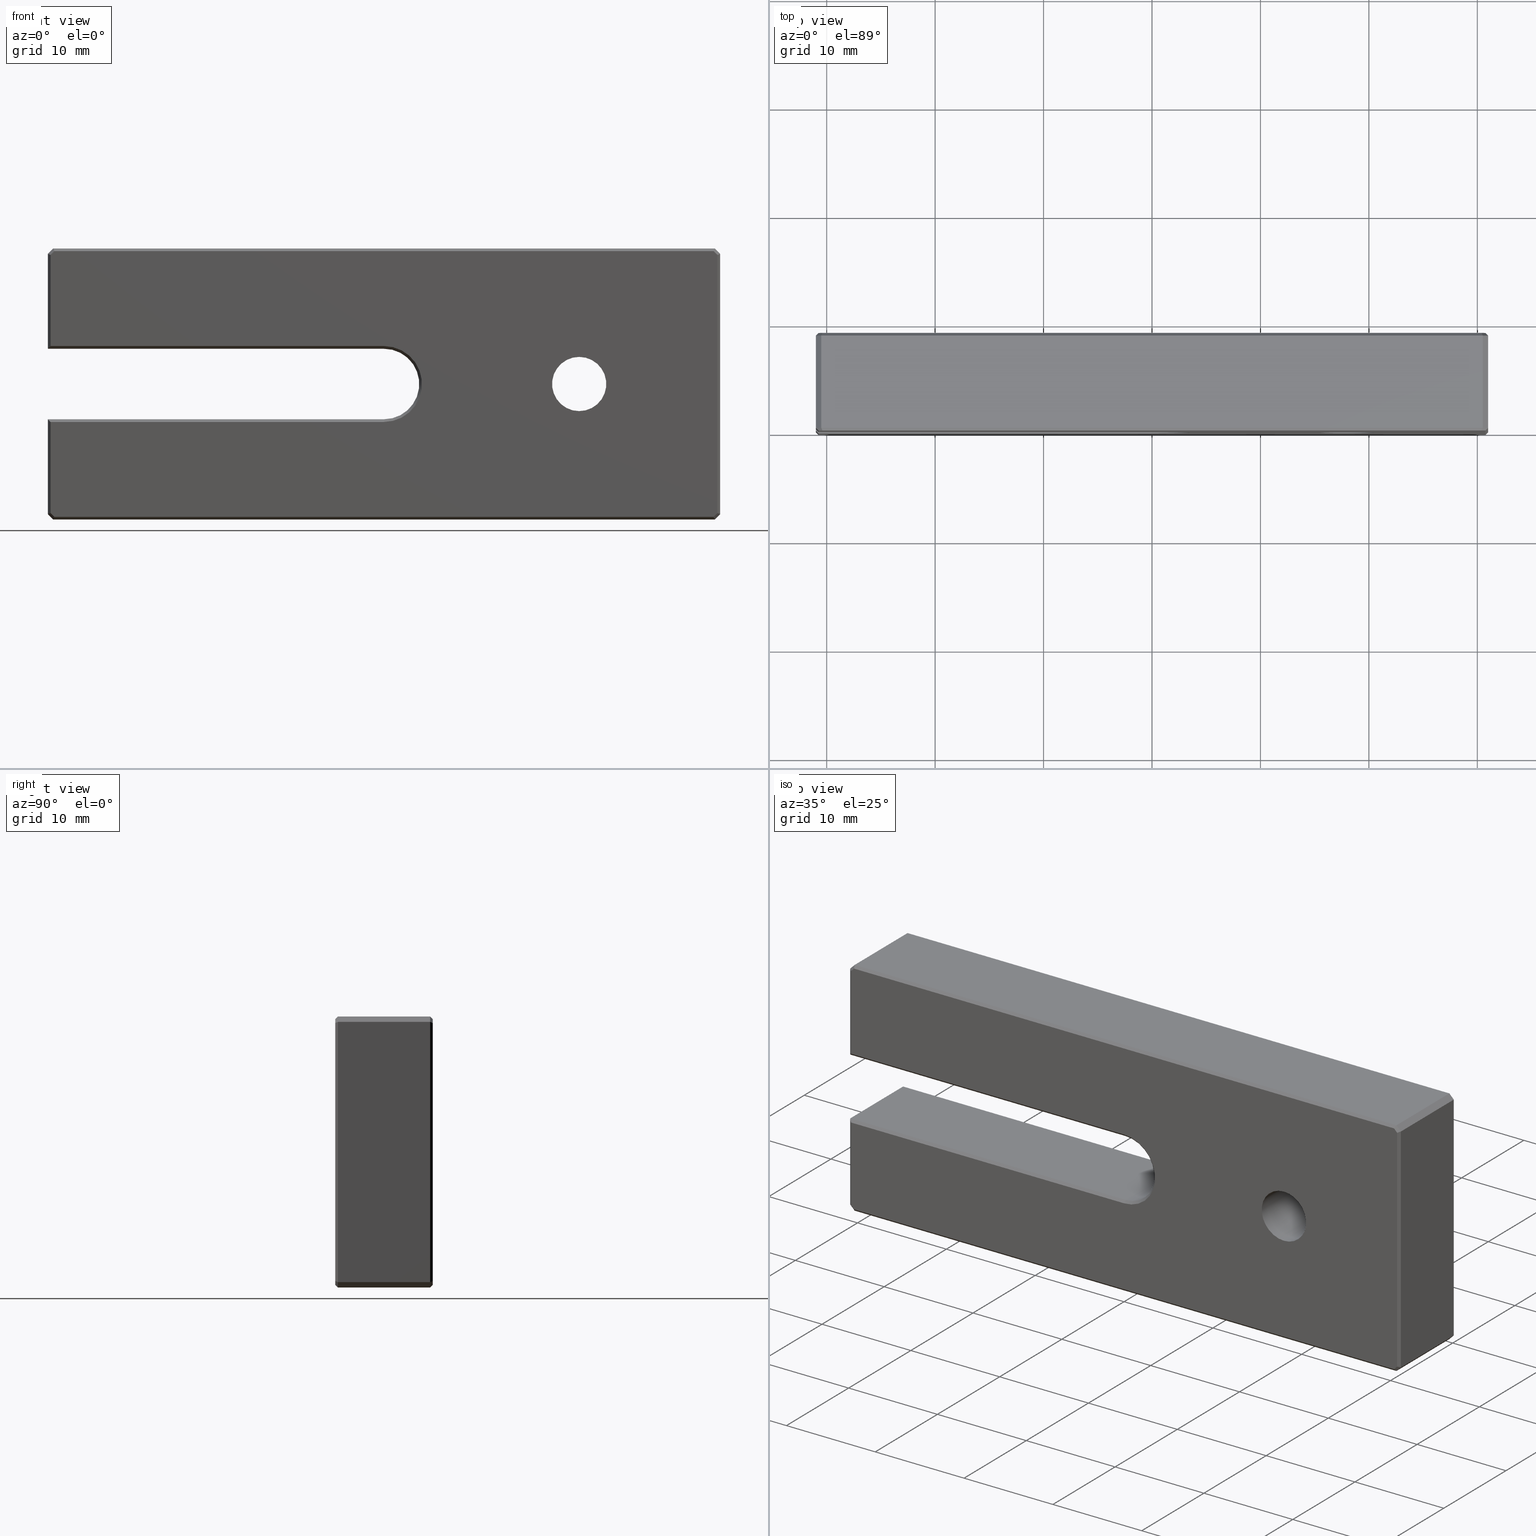
[diagram: canonical four-view strip — front | top / right | iso, engineering-drawing reading convention]
A machine part, canonical four-view strip (front | top / right | iso — engineering-drawing reading convention). The complete STEP part file that produces these views, byte-faithful:
ISO-10303-21;
HEADER;
FILE_DESCRIPTION (( 'STEP AP203' ),
    '1' );
FILE_NAME ('62-25-9-B-ת�Ӱ� .STEP',
    '2025-05-19T03:17:54',
    ( 'Windows User' ),
    ( 'P R C' ),
    'SwSTEP 2.0',
    'SolidWorks 2020',
    '' );
FILE_SCHEMA (( 'CONFIG_CONTROL_DESIGN' ));
ENDSEC;

DATA;
#1 = DIRECTION ( 'NONE',  ( 0.000000000000000000, -0.000000000000000000, 1.000000000000000000 ) ) ;
#2 = EDGE_LOOP ( 'NONE', ( #863, #876, #59, #949 ) ) ;
#3 = EDGE_LOOP ( 'NONE', ( #574, #998, #155, #906 ) ) ;
#4 = LINE ( 'NONE', #271, #256 ) ;
#5 = CARTESIAN_POINT ( 'NONE',  ( -30.49999999999999645, 0.2499999999999932832, 12.50000000000000178 ) ) ;
#6 = LINE ( 'NONE', #192, #607 ) ;
#7 = VECTOR ( 'NONE', #88, 1000.000000000000000 ) ;
#8 = PRODUCT_DEFINITION_SHAPE ( 'NONE', 'NONE',  #460 ) ;
#9 = EDGE_LOOP ( 'NONE', ( #976, #912, #184, #848 ) ) ;
#10 = CARTESIAN_POINT ( 'NONE',  ( -62.00000000000001421, 8.749999999999998224, -3.249999999999996447 ) ) ;
#11 = VECTOR ( 'NONE', #18, 1000.000000000000114 ) ;
#12 = DIRECTION ( 'NONE',  ( -0.7071067811865524577, -0.000000000000000000, 0.7071067811865426878 ) ) ;
#13 = EDGE_CURVE ( 'NONE', #516, #854, #137, .T. ) ;
#14 = CARTESIAN_POINT ( 'NONE',  ( 30.99999999999999289, 0.2499999999999932832, -12.49999999999999822 ) ) ;
#15 = ORIENTED_EDGE ( 'NONE', *, *, #721, .F. ) ;
#16 = DIRECTION ( 'NONE',  ( 0.000000000000000000, -1.000000000000000000, 0.000000000000000000 ) ) ;
#17 = PLANE ( 'NONE',  #120 ) ;
#18 = DIRECTION ( 'NONE',  ( -0.2810846377148201736, 0.6785983445458469987, 0.6785983445458469987 ) ) ;
#19 = EDGE_LOOP ( 'NONE', ( #421, #894, #219, #168 ) ) ;
#20 = DIRECTION ( 'NONE',  ( -0.4999999999999930611, 0.7071067811865573427, 0.4999999999999930611 ) ) ;
#21 = FACE_OUTER_BOUND ( 'NONE', #1122, .T. ) ;
#22 = CARTESIAN_POINT ( 'NONE',  ( 0.000000000000000000, -12.00000000000000533, -3.250000000000000000 ) ) ;
#23 = EDGE_CURVE ( 'NONE', #547, #1108, #349, .T. ) ;
#24 = ORIENTED_EDGE ( 'NONE', *, *, #568, .T. ) ;
#25 = DIRECTION ( 'NONE',  ( -0.000000000000000000, 1.000000000000000000, -0.000000000000000000 ) ) ;
#26 = AXIS2_PLACEMENT_3D ( 'NONE', #180, #1104, #33 ) ;
#27 = ORIENTED_EDGE ( 'NONE', *, *, #758, .F. ) ;
#28 = CARTESIAN_POINT ( 'NONE',  ( 30.49999999999999645, 9.000000000000000000, 12.25000000000000178 ) ) ;
#29 = CARTESIAN_POINT ( 'NONE',  ( -41.33333333333325044, -1.583333333333311721, -7.083333333333308168 ) ) ;
#30 = EDGE_LOOP ( 'NONE', ( #965, #822, #43, #24, #32, #1081, #387, #433, #143, #915, #236, #296 ) ) ;
#31 = EDGE_CURVE ( 'NONE', #1094, #634, #437, .T. ) ;
#32 = ORIENTED_EDGE ( 'NONE', *, *, #637, .T. ) ;
#33 = DIRECTION ( 'NONE',  ( -1.387778780781445676E-16, 0.000000000000000000, -1.000000000000000000 ) ) ;
#34 = CARTESIAN_POINT ( 'NONE',  ( 30.50000000000000000, 8.749999999999998224, -12.49999999999999822 ) ) ;
#35 = ORIENTED_EDGE ( 'NONE', *, *, #1126, .F. ) ;
#36 = CARTESIAN_POINT ( 'NONE',  ( -30.49999999999999645, 8.750000000000000000, 12.50000000000000178 ) ) ;
#37 = CC_DESIGN_PERSON_AND_ORGANIZATION_ASSIGNMENT ( #916, #830, ( #792 ) ) ;
#38 = ORIENTED_EDGE ( 'NONE', *, *, #1101, .T. ) ;
#39 = CARTESIAN_POINT ( 'NONE',  ( -31.00000000000000711, 9.000000000000000000, -12.49999999999999822 ) ) ;
#40 = EDGE_CURVE ( 'NONE', #1134, #449, #602, .T. ) ;
#41 = CARTESIAN_POINT ( 'NONE',  ( 28.48082930542328484, 11.26917069457669029, -10.95652533237350745 ) ) ;
#42 = ORIENTED_EDGE ( 'NONE', *, *, #241, .T. ) ;
#43 = ORIENTED_EDGE ( 'NONE', *, *, #684, .T. ) ;
#44 = VECTOR ( 'NONE', #596, 999.9999999999998863 ) ;
#45 = CARTESIAN_POINT ( 'NONE',  ( -30.39644660940672338, 0.000000000000000000, 12.25000000000000178 ) ) ;
#46 = DIRECTION ( 'NONE',  ( 1.387778780781445676E-16, 0.000000000000000000, 1.000000000000000000 ) ) ;
#47 = EDGE_CURVE ( 'NONE', #1067, #1067, #1092, .T. ) ;
#48 = VECTOR ( 'NONE', #957, 999.9999999999998863 ) ;
#49 = DIRECTION ( 'NONE',  ( 0.000000000000000000, 0.000000000000000000, 1.000000000000000000 ) ) ;
#50 = DATE_TIME_ROLE ( 'creation_date' ) ;
#51 = ORIENTED_EDGE ( 'NONE', *, *, #672, .F. ) ;
#52 = DIRECTION ( 'NONE',  ( -0.000000000000000000, -1.000000000000000000, -0.000000000000000000 ) ) ;
#53 = VECTOR ( 'NONE', #399, 1000.000000000000000 ) ;
#54 = AXIS2_PLACEMENT_3D ( 'NONE', #946, #1037, #1021 ) ;
#55 = LINE ( 'NONE', #402, #534 ) ;
#56 = EDGE_CURVE ( 'NONE', #252, #854, #952, .T. ) ;
#57 = CARTESIAN_POINT ( 'NONE',  ( 31.41024318152621575, 2.447521433898090404, 14.69752143389816190 ) ) ;
#58 = SECURITY_CLASSIFICATION_LEVEL ( 'unclassified' ) ;
#59 = ORIENTED_EDGE ( 'NONE', *, *, #13, .T. ) ;
#60 = DIRECTION ( 'NONE',  ( 0.7071067811865474617, -0.000000000000000000, 0.7071067811865474617 ) ) ;
#61 = FACE_OUTER_BOUND ( 'NONE', #80, .T. ) ;
#62 = CALENDAR_DATE ( 2025, 19, 5 ) ;
#63 = EDGE_CURVE ( 'NONE', #641, #1106, #391, .T. ) ;
#64 = ORIENTED_EDGE ( 'NONE', *, *, #207, .T. ) ;
#65 = LINE ( 'NONE', #842, #165 ) ;
#66 = DIRECTION ( 'NONE',  ( 0.000000000000000000, -1.000000000000000000, 0.000000000000000000 ) ) ;
#67 = VECTOR ( 'NONE', #116, 1000.000000000000000 ) ;
#68 = AXIS2_PLACEMENT_3D ( 'NONE', #986, #650, #570 ) ;
#69 = ORIENTED_EDGE ( 'NONE', *, *, #134, .T. ) ;
#70 = EDGE_CURVE ( 'NONE', #1036, #86, #690, .T. ) ;
#71 = FACE_OUTER_BOUND ( 'NONE', #95, .T. ) ;
#72 = DIRECTION ( 'NONE',  ( -0.2810846377148239483, -0.6785983445458368957, 0.6785983445458556584 ) ) ;
#73 = CC_DESIGN_APPROVAL ( #1052, ( #1000 ) ) ;
#74 = DATE_TIME_ROLE ( 'classification_date' ) ;
#75 = ORIENTED_EDGE ( 'NONE', *, *, #594, .T. ) ;
#76 = CARTESIAN_POINT ( 'NONE',  ( 30.50000000000000000, 0.2499999999999935052, -12.49999999999999645 ) ) ;
#77 = CARTESIAN_POINT ( 'NONE',  ( 30.50000000000000000, 9.000000000000000000, -12.49999999999999822 ) ) ;
#78 = ADVANCED_FACE ( 'NONE', ( #572 ), #258, .F. ) ;
#79 = ORIENTED_EDGE ( 'NONE', *, *, #489, .F. ) ;
#80 = EDGE_LOOP ( 'NONE', ( #42, #341, #931, #51 ) ) ;
#81 = PLANE ( 'NONE',  #633 ) ;
#82 = CARTESIAN_POINT ( 'NONE',  ( -62.00000000000001421, 8.749999999999998224, 3.250000000000003109 ) ) ;
#83 = CARTESIAN_POINT ( 'NONE',  ( -31.00000000000000355, 9.000000000000000000, 12.00000000000000178 ) ) ;
#84 = EDGE_CURVE ( 'NONE', #311, #194, #404, .T. ) ;
#85 = CIRCLE ( 'NONE', #605, 3.500000000000000000 ) ;
#86 = VERTEX_POINT ( 'NONE', #1131 ) ;
#87 = CARTESIAN_POINT ( 'NONE',  ( -36.25000000000008527, 5.499999999999968914, -2.000000000000118128 ) ) ;
#88 = DIRECTION ( 'NONE',  ( 1.000000000000000000, 0.000000000000000000, -5.595882180570342961E-17 ) ) ;
#89 = PLANE ( 'NONE',  #395 ) ;
#90 = VECTOR ( 'NONE', #92, 1000.000000000000000 ) ;
#91 = ORIENTED_EDGE ( 'NONE', *, *, #1011, .F. ) ;
#92 = DIRECTION ( 'NONE',  ( 0.000000000000000000, -1.000000000000000000, 0.000000000000000000 ) ) ;
#93 = CARTESIAN_POINT ( 'NONE',  ( 30.99999999999999645, 9.000000000000000000, 12.00000000000000888 ) ) ;
#94 = DIRECTION ( 'NONE',  ( -1.000000000000000000, 0.000000000000000000, 0.000000000000000000 ) ) ;
#95 = EDGE_LOOP ( 'NONE', ( #1117, #893, #1006, #15 ) ) ;
#96 = LINE ( 'NONE', #87, #107 ) ;
#97 = EDGE_CURVE ( 'NONE', #121, #988, #229, .T. ) ;
#98 = CARTESIAN_POINT ( 'NONE',  ( -30.39644660940672338, 9.000000000000000000, 12.25000000000000178 ) ) ;
#99 = FACE_OUTER_BOUND ( 'NONE', #567, .T. ) ;
#100 = ORIENTED_EDGE ( 'NONE', *, *, #134, .F. ) ;
#101 = CARTESIAN_POINT ( 'NONE',  ( 30.74999999999999645, 9.000000000000000000, 11.89644660940673404 ) ) ;
#102 = AXIS2_PLACEMENT_3D ( 'NONE', #14, #442, #111 ) ;
#103 = EDGE_CURVE ( 'NONE', #1113, #603, #745, .T. ) ;
#104 = CARTESIAN_POINT ( 'NONE',  ( -31.00000000000000355, 0.2499999999999932832, 12.00000000000000178 ) ) ;
#105 = DIRECTION ( 'NONE',  ( 0.000000000000000000, 0.000000000000000000, 1.000000000000000000 ) ) ;
#106 = SECURITY_CLASSIFICATION ( '', '', #58 ) ;
#107 = VECTOR ( 'NONE', #196, 1000.000000000000000 ) ;
#108 = EDGE_LOOP ( 'NONE', ( #231, #554, #654, #335 ) ) ;
#109 = FACE_OUTER_BOUND ( 'NONE', #1128, .T. ) ;
#110 = CARTESIAN_POINT ( 'NONE',  ( 28.48082930542317825, 11.26917069457680043, 10.95652533237340798 ) ) ;
#111 = DIRECTION ( 'NONE',  ( -1.387778780781445676E-16, 0.000000000000000000, -1.000000000000000000 ) ) ;
#112 = ADVANCED_FACE ( 'NONE', ( #1102 ), #89, .F. ) ;
#113 = MANIFOLD_SOLID_BREP ( 'M6 ���ƿ�1', #1027 ) ;
#114 = ORIENTED_EDGE ( 'NONE', *, *, #40, .T. ) ;
#115 =( LENGTH_UNIT ( ) NAMED_UNIT ( * ) SI_UNIT ( .MILLI., .METRE. ) );
#116 = DIRECTION ( 'NONE',  ( -1.387778780781445676E-16, 0.000000000000000000, -1.000000000000000000 ) ) ;
#117 = LINE ( 'NONE', #962, #48 ) ;
#118 = EDGE_CURVE ( 'NONE', #934, #641, #1053, .T. ) ;
#119 = EDGE_LOOP ( 'NONE', ( #1073, #686, #614, #129 ) ) ;
#120 = AXIS2_PLACEMENT_3D ( 'NONE', #93, #621, #353 ) ;
#121 = VERTEX_POINT ( 'NONE', #354 ) ;
#122 = PLANE ( 'NONE',  #755 ) ;
#123 = VECTOR ( 'NONE', #776, 1000.000000000000114 ) ;
#124 = PLANE ( 'NONE',  #738 ) ;
#125 = APPROVAL ( #673, 'δָ��' ) ;
#126 = ORIENTED_EDGE ( 'NONE', *, *, #445, .F. ) ;
#127 = CARTESIAN_POINT ( 'NONE',  ( 17.99999999999999645, 9.000000000000000000, 0.000000000000000000 ) ) ;
#128 = EDGE_CURVE ( 'NONE', #205, #516, #459, .T. ) ;
#129 = ORIENTED_EDGE ( 'NONE', *, *, #751, .F. ) ;
#130 = FACE_OUTER_BOUND ( 'NONE', #817, .T. ) ;
#131 = DIRECTION ( 'NONE',  ( 0.7071067811865401342, 0.7071067811865549002, -9.813077866773490946E-17 ) ) ;
#132 = ORIENTED_EDGE ( 'NONE', *, *, #805, .F. ) ;
#133 = ORIENTED_EDGE ( 'NONE', *, *, #389, .F. ) ;
#134 = EDGE_CURVE ( 'NONE', #1094, #86, #706, .T. ) ;
#135 = FACE_OUTER_BOUND ( 'NONE', #702, .T. ) ;
#136 = DIRECTION ( 'NONE',  ( 1.000000000000000000, 0.000000000000000000, -5.595882180570342961E-17 ) ) ;
#137 = LINE ( 'NONE', #683, #1050 ) ;
#138 = APPLICATION_PROTOCOL_DEFINITION ( 'international standard', 'config_control_design', 1994, #627 ) ;
#139 = CIRCLE ( 'NONE', #1030, 2.499999999999998668 ) ;
#140 = PLANE ( 'NONE',  #697 ) ;
#141 = DIRECTION ( 'NONE',  ( 1.000000000000000000, 0.000000000000000000, -5.595882180570342961E-17 ) ) ;
#142 = AXIS2_PLACEMENT_3D ( 'NONE', #157, #249, #240 ) ;
#143 = ORIENTED_EDGE ( 'NONE', *, *, #672, .T. ) ;
#144 = APPROVAL_DATE_TIME ( #845, #1052 ) ;
#145 = ORIENTED_EDGE ( 'NONE', *, *, #840, .T. ) ;
#146 = CARTESIAN_POINT ( 'NONE',  ( 0.000000000000000000, 0.000000000000000000, 3.500000000000000000 ) ) ;
#147 = LOCAL_TIME ( 11, 17, 54.00000000000000000, #653 ) ;
#148 = AXIS2_PLACEMENT_3D ( 'NONE', #579, #498, #494 ) ;
#149 = CARTESIAN_POINT ( 'NONE',  ( 1.398970545142586973E-17, 9.000000000000000000, 3.500000000000000000 ) ) ;
#150 = ADVANCED_FACE ( 'NONE', ( #804 ), #365, .F. ) ;
#151 = EDGE_LOOP ( 'NONE', ( #537, #373, #628, #715 ) ) ;
#152 = LINE ( 'NONE', #935, #257 ) ;
#153 = CARTESIAN_POINT ( 'NONE',  ( -30.75000000000000711, 0.000000000000000000, 4.267419750902946241E-15 ) ) ;
#154 = EDGE_CURVE ( 'NONE', #582, #400, #268, .T. ) ;
#155 = ORIENTED_EDGE ( 'NONE', *, *, #154, .F. ) ;
#156 = LINE ( 'NONE', #146, #577 ) ;
#157 = CARTESIAN_POINT ( 'NONE',  ( -1.958558763199620221E-16, 0.000000000000000000, -3.500000000000000000 ) ) ;
#158 = AXIS2_PLACEMENT_3D ( 'NONE', #612, #208, #187 ) ;
#159 = APPROVAL_DATE_TIME ( #491, #125 ) ;
#160 = ORIENTED_EDGE ( 'NONE', *, *, #1101, .F. ) ;
#161 = FACE_OUTER_BOUND ( 'NONE', #501, .T. ) ;
#162 = EDGE_CURVE ( 'NONE', #374, #374, #139, .T. ) ;
#163 = CARTESIAN_POINT ( 'NONE',  ( -30.75000000000000711, 0.000000000000000000, -3.499999999999998224 ) ) ;
#164 = LOCAL_TIME ( 11, 17, 54.00000000000000000, #300 ) ;
#165 = VECTOR ( 'NONE', #247, 1000.000000000000000 ) ;
#166 = CARTESIAN_POINT ( 'NONE',  ( 17.99999999999999645, 9.000000000000000000, 0.000000000000000000 ) ) ;
#167 = COORDINATED_UNIVERSAL_TIME_OFFSET ( 8, 0, .AHEAD. ) ;
#168 = ORIENTED_EDGE ( 'NONE', *, *, #323, .T. ) ;
#169 = DIRECTION ( 'NONE',  ( 0.4999999999999895639, 0.7071067811865574537, -0.4999999999999966138 ) ) ;
#170 = EDGE_CURVE ( 'NONE', #287, #641, #117, .T. ) ;
#171 = FACE_OUTER_BOUND ( 'NONE', #742, .T. ) ;
#172 = ORIENTED_EDGE ( 'NONE', *, *, #128, .F. ) ;
#173 = ORIENTED_EDGE ( 'NONE', *, *, #366, .T. ) ;
#174 = CARTESIAN_POINT ( 'NONE',  ( -31.00000000000000711, 9.000000000000000000, -12.00000000000000533 ) ) ;
#175 = CARTESIAN_POINT ( 'NONE',  ( -28.20710678118658521, 11.54289321881343611, -10.84314575050759011 ) ) ;
#176 = DIRECTION ( 'NONE',  ( 0.7071067811865524577, -0.000000000000000000, -0.7071067811865426878 ) ) ;
#177 = AXIS2_PLACEMENT_3D ( 'NONE', #364, #528, #1 ) ;
#178 = ORIENTED_EDGE ( 'NONE', *, *, #162, .T. ) ;
#179 = CARTESIAN_POINT ( 'NONE',  ( 30.99999999999999645, 9.000000000000000000, 12.00000000000000888 ) ) ;
#180 = CARTESIAN_POINT ( 'NONE',  ( -30.75000000000000711, 9.000000000000000000, 4.267419750902946241E-15 ) ) ;
#181 = DIRECTION ( 'NONE',  ( -0.2810846377148085717, -0.6785983445458494412, 0.6785983445458494412 ) ) ;
#182 = LOCAL_TIME ( 11, 17, 54.00000000000000000, #496 ) ;
#183 = EDGE_CURVE ( 'NONE', #625, #1113, #6, .T. ) ;
#184 = ORIENTED_EDGE ( 'NONE', *, *, #467, .F. ) ;
#185 = LINE ( 'NONE', #620, #761 ) ;
#186 = CARTESIAN_POINT ( 'NONE',  ( 30.99999999999999645, 8.749999999999998224, 12.00000000000000888 ) ) ;
#187 = DIRECTION ( 'NONE',  ( 0.000000000000000000, 0.000000000000000000, 1.000000000000000000 ) ) ;
#188 = EDGE_CURVE ( 'NONE', #327, #1003, #632, .T. ) ;
#189 = ORIENTED_EDGE ( 'NONE', *, *, #481, .F. ) ;
#190 = LINE ( 'NONE', #1049, #378 ) ;
#191 = FACE_BOUND ( 'NONE', #369, .T. ) ;
#192 = CARTESIAN_POINT ( 'NONE',  ( -31.41024318152619443, 6.552478566101725299, 14.69752143389827737 ) ) ;
#193 = VECTOR ( 'NONE', #326, 1000.000000000000000 ) ;
#194 = VERTEX_POINT ( 'NONE', #525 ) ;
#195 = CC_DESIGN_PERSON_AND_ORGANIZATION_ASSIGNMENT ( #1121, #1029, ( #1000 ) ) ;
#196 = DIRECTION ( 'NONE',  ( -0.5773502691896286176, 0.5773502691896164052, -0.5773502691896322814 ) ) ;
#197 = VECTOR ( 'NONE', #909, 1000.000000000000114 ) ;
#198 = EDGE_CURVE ( 'NONE', #1036, #982, #360, .T. ) ;
#199 = CARTESIAN_POINT ( 'NONE',  ( 0.000000000000000000, 0.000000000000000000, 0.000000000000000000 ) ) ;
#200 = DIRECTION ( 'NONE',  ( 0.000000000000000000, 0.7071067811865475727, -0.7071067811865475727 ) ) ;
#201 = APPROVAL_PERSON_ORGANIZATION ( #807, #1065, #393 ) ;
#202 = AXIS2_PLACEMENT_3D ( 'NONE', #503, #325, #593 ) ;
#203 = ORIENTED_EDGE ( 'NONE', *, *, #938, .T. ) ;
#204 = FACE_OUTER_BOUND ( 'NONE', #657, .T. ) ;
#205 = VERTEX_POINT ( 'NONE', #879 ) ;
#206 = DIRECTION ( 'NONE',  ( -0.7071067811865474617, 0.000000000000000000, -0.7071067811865474617 ) ) ;
#207 = EDGE_CURVE ( 'NONE', #634, #652, #874, .T. ) ;
#208 = DIRECTION ( 'NONE',  ( 0.000000000000000000, 1.000000000000000000, 0.000000000000000000 ) ) ;
#209 = ORIENTED_EDGE ( 'NONE', *, *, #1054, .T. ) ;
#210 = CARTESIAN_POINT ( 'NONE',  ( 30.74999999999999289, 9.000000000000000000, -12.00000000000000533 ) ) ;
#211 = LINE ( 'NONE', #914, #793 ) ;
#212 = ORIENTED_EDGE ( 'NONE', *, *, #721, .T. ) ;
#213 = CARTESIAN_POINT ( 'NONE',  ( 17.99999999999999645, 8.474999999999999645, 0.000000000000000000 ) ) ;
#214 = VECTOR ( 'NONE', #569, 999.9999999999998863 ) ;
#215 = VERTEX_POINT ( 'NONE', #701 ) ;
#216 = LINE ( 'NONE', #907, #844 ) ;
#217 = CARTESIAN_POINT ( 'NONE',  ( 0.000000000000000000, 9.000000000000000000, 0.000000000000000000 ) ) ;
#218 = ADVANCED_FACE ( 'NONE', ( #99 ), #623, .F. ) ;
#219 = ORIENTED_EDGE ( 'NONE', *, *, #267, .T. ) ;
#220 = ORIENTED_EDGE ( 'NONE', *, *, #31, .T. ) ;
#221 = DIRECTION ( 'NONE',  ( 0.7071067811865474617, -0.000000000000000000, 0.7071067811865474617 ) ) ;
#222 = DIRECTION ( 'NONE',  ( -0.000000000000000000, -1.000000000000000000, -0.000000000000000000 ) ) ;
#223 = CARTESIAN_POINT ( 'NONE',  ( 1.398970545142586973E-17, 9.000000000000000000, 3.500000000000000000 ) ) ;
#224 = APPROVAL_DATE_TIME ( #469, #1065 ) ;
#225 = CC_DESIGN_PERSON_AND_ORGANIZATION_ASSIGNMENT ( #414, #230, ( #1000 ) ) ;
#226 = EDGE_LOOP ( 'NONE', ( #392, #173, #1076, #242, #713, #295, #64, #212, #1069, #381, #767, #305 ) ) ;
#227 = FACE_OUTER_BOUND ( 'NONE', #246, .T. ) ;
#228 = FACE_BOUND ( 'NONE', #859, .T. ) ;
#229 = LINE ( 'NONE', #749, #647 ) ;
#230 = PERSON_AND_ORGANIZATION_ROLE ( 'design_supplier' ) ;
#231 = ORIENTED_EDGE ( 'NONE', *, *, #183, .T. ) ;
#232 = VECTOR ( 'NONE', #936, 1000.000000000000000 ) ;
#233 = DIRECTION ( 'NONE',  ( 0.000000000000000000, 0.7071067811865573427, 0.7071067811865378028 ) ) ;
#234 = EDGE_CURVE ( 'NONE', #194, #409, #682, .T. ) ;
#235 = PLANE ( 'NONE',  #308 ) ;
#236 = ORIENTED_EDGE ( 'NONE', *, *, #758, .T. ) ;
#237 = DIRECTION ( 'NONE',  ( -1.000000000000000000, 0.000000000000000000, 5.595882180570342961E-17 ) ) ;
#238 = AXIS2_PLACEMENT_3D ( 'NONE', #635, #566, #462 ) ;
#239 = AXIS2_PLACEMENT_3D ( 'NONE', #780, #966, #440 ) ;
#240 = DIRECTION ( 'NONE',  ( -1.000000000000000000, 0.000000000000000000, 5.595882180570342961E-17 ) ) ;
#241 = EDGE_CURVE ( 'NONE', #362, #409, #465, .T. ) ;
#242 = ORIENTED_EDGE ( 'NONE', *, *, #1085, .T. ) ;
#243 = FACE_OUTER_BOUND ( 'NONE', #478, .T. ) ;
#244 = CARTESIAN_POINT ( 'NONE',  ( -31.00000000000000355, 8.749999999999998224, 3.250000000000001776 ) ) ;
#245 = ADVANCED_FACE ( 'NONE', ( #794 ), #280, .F. ) ;
#246 = EDGE_LOOP ( 'NONE', ( #209, #1020, #79, #259 ) ) ;
#247 = DIRECTION ( 'NONE',  ( 1.387778780781445676E-16, 0.000000000000000000, 1.000000000000000000 ) ) ;
#248 = VECTOR ( 'NONE', #754, 1000.000000000000000 ) ;
#249 = DIRECTION ( 'NONE',  ( -3.956886236602199280E-17, 0.7071067811865573427, -0.7071067811865378028 ) ) ;
#250 = DIRECTION ( 'NONE',  ( 0.2810846377148299435, -0.6785983445458451113, 0.6785983445458451113 ) ) ;
#251 = ADVANCED_FACE ( 'NONE', ( #799 ), #285, .T. ) ;
#252 = VERTEX_POINT ( 'NONE', #718 ) ;
#253 = PERSON ( 'δָ��', 'δָ��', 'δָ��', ('δָ��'), ('δָ��'), ('δָ��') ) ;
#254 = DIRECTION ( 'NONE',  ( -1.000000000000000000, 0.000000000000000000, 0.000000000000000000 ) ) ;
#255 = FACE_OUTER_BOUND ( 'NONE', #788, .T. ) ;
#256 = VECTOR ( 'NONE', #260, 1000.000000000000114 ) ;
#257 = VECTOR ( 'NONE', #237, 1000.000000000000000 ) ;
#258 = PLANE ( 'NONE',  #831 ) ;
#259 = ORIENTED_EDGE ( 'NONE', *, *, #1115, .F. ) ;
#260 = DIRECTION ( 'NONE',  ( 0.7071067811865474617, 0.000000000000000000, 0.7071067811865474617 ) ) ;
#261 = PLANE ( 'NONE',  #992 ) ;
#262 = ORIENTED_EDGE ( 'NONE', *, *, #790, .F. ) ;
#263 = ORIENTED_EDGE ( 'NONE', *, *, #928, .T. ) ;
#264 = UNCERTAINTY_MEASURE_WITH_UNIT (LENGTH_MEASURE( 1.000000000000000082E-05 ), #115, 'distance_accuracy_value', 'NONE');
#265 = LINE ( 'NONE', #179, #90 ) ;
#266 = FACE_OUTER_BOUND ( 'NONE', #463, .T. ) ;
#267 = EDGE_CURVE ( 'NONE', #641, #409, #892, .T. ) ;
#268 = LINE ( 'NONE', #29, #505 ) ;
#269 = VECTOR ( 'NONE', #250, 1000.000000000000000 ) ;
#270 = ORIENTED_EDGE ( 'NONE', *, *, #1028, .T. ) ;
#271 = CARTESIAN_POINT ( 'NONE',  ( 30.82322330470335814, 0.000000000000000000, -11.82322330470336702 ) ) ;
#272 = APPLICATION_CONTEXT ( 'configuration controlled 3d designs of mechanical parts and assemblies' ) ;
#273 = LINE ( 'NONE', #110, #466 ) ;
#274 = DIRECTION ( 'NONE',  ( -0.5773502691896231775, -0.5773502691896270633, -0.5773502691896270633 ) ) ;
#275 = EDGE_CURVE ( 'NONE', #449, #619, #833, .T. ) ;
#276 = VECTOR ( 'NONE', #970, 1000.000000000000000 ) ;
#277 = ORIENTED_EDGE ( 'NONE', *, *, #987, .F. ) ;
#278 = LINE ( 'NONE', #877, #852 ) ;
#279 = DIRECTION ( 'NONE',  ( 0.000000000000000000, 0.000000000000000000, 1.000000000000000000 ) ) ;
#280 = PLANE ( 'NONE',  #678 ) ;
#281 = EDGE_CURVE ( 'NONE', #854, #327, #661, .T. ) ;
#282 = ORIENTED_EDGE ( 'NONE', *, *, #162, .F. ) ;
#283 = LINE ( 'NONE', #709, #778 ) ;
#284 = FACE_OUTER_BOUND ( 'NONE', #439, .T. ) ;
#285 = PLANE ( 'NONE',  #1071 ) ;
#286 = VECTOR ( 'NONE', #206, 1000.000000000000114 ) ;
#287 = VERTEX_POINT ( 'NONE', #638 ) ;
#288 =( NAMED_UNIT ( * ) PLANE_ANGLE_UNIT ( ) SI_UNIT ( $, .RADIAN. ) );
#289 = EDGE_CURVE ( 'NONE', #318, #362, #211, .T. ) ;
#290 = ORIENTED_EDGE ( 'NONE', *, *, #987, .T. ) ;
#291 = LINE ( 'NONE', #698, #717 ) ;
#292 = DIRECTION ( 'NONE',  ( -0.000000000000000000, 1.000000000000000000, -0.000000000000000000 ) ) ;
#293 =( GEOMETRIC_REPRESENTATION_CONTEXT ( 3 ) GLOBAL_UNCERTAINTY_ASSIGNED_CONTEXT ( ( #264 ) ) GLOBAL_UNIT_ASSIGNED_CONTEXT ( ( #115, #288, #626 ) ) REPRESENTATION_CONTEXT ( 'NONE', 'WORKASPACE' ) );
#294 = AXIS2_PLACEMENT_3D ( 'NONE', #583, #588, #60 ) ;
#295 = ORIENTED_EDGE ( 'NONE', *, *, #418, .T. ) ;
#296 = ORIENTED_EDGE ( 'NONE', *, *, #581, .T. ) ;
#297 = CARTESIAN_POINT ( 'NONE',  ( -30.82322330470336524, 0.000000000000000000, 11.82322330470336347 ) ) ;
#298 = DIRECTION ( 'NONE',  ( 0.7071067811865524577, 0.000000000000000000, -0.7071067811865426878 ) ) ;
#299 = ORIENTED_EDGE ( 'NONE', *, *, #963, .F. ) ;
#300 = COORDINATED_UNIVERSAL_TIME_OFFSET ( 8, 0, .AHEAD. ) ;
#301 = VERTEX_POINT ( 'NONE', #1091 ) ;
#302 = DIRECTION ( 'NONE',  ( -0.7071067811865500152, 0.7071067811865451302, 9.813077866773628997E-17 ) ) ;
#303 = FACE_OUTER_BOUND ( 'NONE', #151, .T. ) ;
#304 = ADVANCED_FACE ( 'NONE', ( #228, #656 ), #827, .T. ) ;
#305 = ORIENTED_EDGE ( 'NONE', *, *, #507, .T. ) ;
#306 = DIRECTION ( 'NONE',  ( -0.000000000000000000, 1.000000000000000000, -0.000000000000000000 ) ) ;
#307 = LINE ( 'NONE', #28, #595 ) ;
#308 = AXIS2_PLACEMENT_3D ( 'NONE', #1008, #477, #141 ) ;
#309 = CARTESIAN_POINT ( 'NONE',  ( -31.00000000000000711, 0.2499999999999932832, -12.00000000000000533 ) ) ;
#310 = ADVANCED_FACE ( 'NONE', ( #748 ), #1100, .T. ) ;
#311 = VERTEX_POINT ( 'NONE', #149 ) ;
#312 = CC_DESIGN_APPROVAL ( #1065, ( #460 ) ) ;
#313 = VECTOR ( 'NONE', #531, 1000.000000000000000 ) ;
#314 = LINE ( 'NONE', #1078, #1079 ) ;
#315 = CARTESIAN_POINT ( 'NONE',  ( 30.50000000000000000, 8.749999999999998224, -12.49999999999999822 ) ) ;
#316 = CARTESIAN_POINT ( 'NONE',  ( 30.99999999999999289, 9.000000000000000000, -12.49999999999999822 ) ) ;
#317 = EDGE_CURVE ( 'NONE', #603, #652, #384, .T. ) ;
#318 = VERTEX_POINT ( 'NONE', #731 ) ;
#319 = DIRECTION ( 'NONE',  ( 0.7071067811865524577, -0.000000000000000000, -0.7071067811865426878 ) ) ;
#320 = PLANE ( 'NONE',  #700 ) ;
#321 = CARTESIAN_POINT ( 'NONE',  ( -30.49999999999999645, 9.000000000000000000, 12.50000000000000178 ) ) ;
#322 = VERTEX_POINT ( 'NONE', #309 ) ;
#323 = EDGE_CURVE ( 'NONE', #409, #357, #558, .T. ) ;
#324 = VECTOR ( 'NONE', #1026, 1000.000000000000000 ) ;
#325 = DIRECTION ( 'NONE',  ( -0.000000000000000000, 1.000000000000000000, -0.000000000000000000 ) ) ;
#326 = DIRECTION ( 'NONE',  ( -1.387778780781445676E-16, 0.000000000000000000, -1.000000000000000000 ) ) ;
#327 = VERTEX_POINT ( 'NONE', #315 ) ;
#328 = LINE ( 'NONE', #422, #798 ) ;
#329 = CC_DESIGN_APPROVAL ( #125, ( #106 ) ) ;
#330 = DIRECTION ( 'NONE',  ( -1.387778780781445676E-16, 0.000000000000000000, -1.000000000000000000 ) ) ;
#331 = ORIENTED_EDGE ( 'NONE', *, *, #1005, .F. ) ;
#332 = DIRECTION ( 'NONE',  ( -0.7071067811865525687, 0.000000000000000000, -0.7071067811865425767 ) ) ;
#333 = PLANE ( 'NONE',  #662 ) ;
#334 = ADVANCED_FACE ( 'NONE', ( #61 ), #340, .F. ) ;
#335 = ORIENTED_EDGE ( 'NONE', *, *, #766, .F. ) ;
#336 = LINE ( 'NONE', #680, #688 ) ;
#337 = VECTOR ( 'NONE', #565, 1000.000000000000000 ) ;
#338 = LINE ( 'NONE', #843, #248 ) ;
#339 = ORIENTED_EDGE ( 'NONE', *, *, #707, .F. ) ;
#340 = CONICAL_SURFACE ( 'NONE', #68, 3.250000000000000000, 0.7853981633974482790 ) ;
#341 = ORIENTED_EDGE ( 'NONE', *, *, #234, .F. ) ;
#342 = DIRECTION ( 'NONE',  ( -1.000000000000000000, 0.000000000000000000, 0.000000000000000000 ) ) ;
#343 = DIRECTION ( 'NONE',  ( 1.000000000000000000, 0.000000000000000000, -1.387778780781445676E-16 ) ) ;
#344 = CARTESIAN_POINT ( 'NONE',  ( -31.00000000000000711, 9.000000000000000000, -12.49999999999999822 ) ) ;
#345 = ORIENTED_EDGE ( 'NONE', *, *, #323, .F. ) ;
#346 = DIRECTION ( 'NONE',  ( -0.6785983445458511065, 0.6785983445458368957, -0.2810846377148346620 ) ) ;
#347 = ADVANCED_FACE ( 'NONE', ( #1105 ), #320, .F. ) ;
#348 = PLANE ( 'NONE',  #571 ) ;
#349 = LINE ( 'NONE', #83, #756 ) ;
#350 = ORIENTED_EDGE ( 'NONE', *, *, #403, .T. ) ;
#351 = CARTESIAN_POINT ( 'NONE',  ( 30.39644660940672694, 9.000000000000000000, -12.24999999999999822 ) ) ;
#352 = ADVANCED_FACE ( 'NONE', ( #303 ), #974, .F. ) ;
#353 = DIRECTION ( 'NONE',  ( 0.000000000000000000, -1.000000000000000000, 0.000000000000000000 ) ) ;
#354 = CARTESIAN_POINT ( 'NONE',  ( -30.39644660940673404, 9.000000000000000000, -12.24999999999999822 ) ) ;
#355 = VECTOR ( 'NONE', #486, 1000.000000000000000 ) ;
#356 = VECTOR ( 'NONE', #617, 1000.000000000000000 ) ;
#357 = VERTEX_POINT ( 'NONE', #576 ) ;
#358 = CARTESIAN_POINT ( 'NONE',  ( 21.32322330470336169, 0.000000000000000000, -21.32322330470336169 ) ) ;
#359 = LINE ( 'NONE', #704, #1014 ) ;
#360 = LINE ( 'NONE', #711, #1127 ) ;
#361 = ADVANCED_FACE ( 'NONE', ( #920 ), #235, .F. ) ;
#362 = VERTEX_POINT ( 'NONE', #725 ) ;
#363 = DIRECTION ( 'NONE',  ( 1.000000000000000000, 0.000000000000000000, -5.595882180570342961E-17 ) ) ;
#364 = CARTESIAN_POINT ( 'NONE',  ( 0.000000000000000000, 0.000000000000000000, 0.000000000000000000 ) ) ;
#365 = PLANE ( 'NONE',  #994 ) ;
#366 = EDGE_CURVE ( 'NONE', #773, #812, #55, .T. ) ;
#367 = EDGE_LOOP ( 'NONE', ( #556, #484, #522, #729 ) ) ;
#368 = CARTESIAN_POINT ( 'NONE',  ( 30.39644660940672338, 0.000000000000000000, -12.24999999999999822 ) ) ;
#369 = EDGE_LOOP ( 'NONE', ( #178 ) ) ;
#370 = DIRECTION ( 'NONE',  ( -0.4999999999999990563, 0.7071067811865439090, 0.5000000000000061062 ) ) ;
#371 = DIRECTION ( 'NONE',  ( -0.000000000000000000, 1.000000000000000000, -0.000000000000000000 ) ) ;
#372 = AXIS2_PLACEMENT_3D ( 'NONE', #451, #446, #630 ) ;
#373 = ORIENTED_EDGE ( 'NONE', *, *, #63, .F. ) ;
#374 = VERTEX_POINT ( 'NONE', #1074 ) ;
#375 = ORIENTED_EDGE ( 'NONE', *, *, #438, .T. ) ;
#376 = CARTESIAN_POINT ( 'NONE',  ( -30.75000000000000711, 0.000000000000000000, -11.89644660940673049 ) ) ;
#377 = DIRECTION ( 'NONE',  ( -1.000000000000000000, 0.000000000000000000, 0.000000000000000000 ) ) ;
#378 = VECTOR ( 'NONE', #866, 1000.000000000000114 ) ;
#379 = ORIENTED_EDGE ( 'NONE', *, *, #103, .T. ) ;
#380 = PERSON_AND_ORGANIZATION ( #253, #1098 ) ;
#381 = ORIENTED_EDGE ( 'NONE', *, *, #1060, .T. ) ;
#382 = ADVANCED_FACE ( 'NONE', ( #551 ), #124, .F. ) ;
#383 = CARTESIAN_POINT ( 'NONE',  ( 0.000000000000000000, 9.000000000000000000, 0.000000000000000000 ) ) ;
#384 = LINE ( 'NONE', #1080, #197 ) ;
#385 = ORIENTED_EDGE ( 'NONE', *, *, #581, .F. ) ;
#386 = CARTESIAN_POINT ( 'NONE',  ( -31.00000000000000711, 8.749999999999998224, -12.00000000000000533 ) ) ;
#387 = ORIENTED_EDGE ( 'NONE', *, *, #1043, .T. ) ;
#388 = CARTESIAN_POINT ( 'NONE',  ( -30.75000000000000711, 9.000000000000000000, 12.00000000000000178 ) ) ;
#389 = EDGE_CURVE ( 'NONE', #449, #898, #821, .T. ) ;
#390 = DIRECTION ( 'NONE',  ( -0.6785983445458504404, 0.6785983445458457775, 0.2810846377148150110 ) ) ;
#391 = CIRCLE ( 'NONE', #885, 3.250000000000000000 ) ;
#392 = ORIENTED_EDGE ( 'NONE', *, *, #800, .T. ) ;
#393 = APPROVAL_ROLE ( '' ) ;
#394 = PLANE ( 'NONE',  #980 ) ;
#395 = AXIS2_PLACEMENT_3D ( 'NONE', #316, #663, #1015 ) ;
#396 = CARTESIAN_POINT ( 'NONE',  ( 21.32322330470315208, 9.000000000000000000, 21.32322330470344696 ) ) ;
#397 = EDGE_CURVE ( 'NONE', #311, #582, #736, .T. ) ;
#398 = DIRECTION ( 'NONE',  ( 0.000000000000000000, 0.000000000000000000, 1.000000000000000000 ) ) ;
#399 = DIRECTION ( 'NONE',  ( -1.387778780781445676E-16, 0.000000000000000000, -1.000000000000000000 ) ) ;
#400 = VERTEX_POINT ( 'NONE', #412 ) ;
#401 = DIRECTION ( 'NONE',  ( 0.7071067811865425767, 0.000000000000000000, 0.7071067811865524577 ) ) ;
#402 = CARTESIAN_POINT ( 'NONE',  ( -30.32322330470336880, 0.000000000000000000, -12.32322330470336169 ) ) ;
#403 = EDGE_CURVE ( 'NONE', #1113, #1108, #765, .T. ) ;
#404 = LINE ( 'NONE', #223, #123 ) ;
#405 = PERSON_AND_ORGANIZATION ( #253, #1098 ) ;
#406 = ORIENTED_EDGE ( 'NONE', *, *, #70, .T. ) ;
#407 = CARTESIAN_POINT ( 'NONE',  ( -30.50000000000000711, 8.749999999999998224, -12.49999999999999822 ) ) ;
#408 = DIRECTION ( 'NONE',  ( -1.000000000000000000, 0.000000000000000000, 5.595882180570342961E-17 ) ) ;
#409 = VERTEX_POINT ( 'NONE', #1110 ) ;
#410 = VECTOR ( 'NONE', #12, 1000.000000000000000 ) ;
#411 = CARTESIAN_POINT ( 'NONE',  ( 30.74999999999999289, 9.000000000000000000, -11.89644660940673404 ) ) ;
#412 = CARTESIAN_POINT ( 'NONE',  ( -31.00000000000000355, 8.749999999999998224, 3.250000000000004441 ) ) ;
#413 = VECTOR ( 'NONE', #902, 1000.000000000000000 ) ;
#414 = PERSON_AND_ORGANIZATION ( #253, #1098 ) ;
#415 = ORIENTED_EDGE ( 'NONE', *, *, #23, .F. ) ;
#416 = PLANE ( 'NONE',  #726 ) ;
#417 = AXIS2_PLACEMENT_3D ( 'NONE', #127, #306, #548 ) ;
#418 = EDGE_CURVE ( 'NONE', #734, #634, #338, .T. ) ;
#419 = DIRECTION ( 'NONE',  ( -1.000000000000000000, 0.000000000000000000, 5.595882180570342961E-17 ) ) ;
#420 = DATE_AND_TIME ( #658, #182 ) ;
#421 = ORIENTED_EDGE ( 'NONE', *, *, #1077, .F. ) ;
#422 = CARTESIAN_POINT ( 'NONE',  ( -30.53950428677964268, 0.3453717849152666552, -12.59537178491527420 ) ) ;
#423 = DIRECTION ( 'NONE',  ( 0.6785983445458423358, 0.6785983445458471097, 0.2810846377148309427 ) ) ;
#424 = ADVANCED_FACE ( 'NONE', ( #589 ), #681, .F. ) ;
#425 = EDGE_LOOP ( 'NONE', ( #379, #880, #69, #679 ) ) ;
#426 = ORIENTED_EDGE ( 'NONE', *, *, #938, .F. ) ;
#427 = CARTESIAN_POINT ( 'NONE',  ( 0.000000000000000000, 9.000000000000000000, 12.25000000000000178 ) ) ;
#428 = AXIS2_PLACEMENT_3D ( 'NONE', #1084, #302, #895 ) ;
#429 = CARTESIAN_POINT ( 'NONE',  ( -31.00000000000000711, 9.000000000000000000, -12.49999999999999822 ) ) ;
#430 = DIRECTION ( 'NONE',  ( 1.000000000000000000, 0.000000000000000000, -0.000000000000000000 ) ) ;
#431 = VECTOR ( 'NONE', #811, 1000.000000000000000 ) ;
#432 = ADVANCED_FACE ( 'NONE', ( #171 ), #499, .F. ) ;
#433 = ORIENTED_EDGE ( 'NONE', *, *, #289, .T. ) ;
#434 = FACE_OUTER_BOUND ( 'NONE', #562, .T. ) ;
#435 = DIRECTION ( 'NONE',  ( -0.6785983445458450003, -0.6785983445458497743, 0.2810846377148188968 ) ) ;
#436 = CC_DESIGN_SECURITY_CLASSIFICATION ( #106, ( #1000 ) ) ;
#437 = LINE ( 'NONE', #57, #622 ) ;
#438 = EDGE_CURVE ( 'NONE', #1108, #400, #601, .T. ) ;
#439 = EDGE_LOOP ( 'NONE', ( #100, #695, #819, #598 ) ) ;
#440 = DIRECTION ( 'NONE',  ( -1.000000000000000000, 0.000000000000000000, -0.000000000000000000 ) ) ;
#441 = CARTESIAN_POINT ( 'NONE',  ( 21.32322330470336169, 9.000000000000000000, -21.32322330470336169 ) ) ;
#442 = DIRECTION ( 'NONE',  ( -0.7071067811865352493, 0.7071067811865597852, 9.813077866773424386E-17 ) ) ;
#443 = ORIENTED_EDGE ( 'NONE', *, *, #613, .F. ) ;
#444 = LINE ( 'NONE', #599, #276 ) ;
#445 = EDGE_CURVE ( 'NONE', #205, #1103, #667, .T. ) ;
#446 = DIRECTION ( 'NONE',  ( -0.4999999999999861777, 0.7071067811865623387, -0.4999999999999930611 ) ) ;
#447 = CARTESIAN_POINT ( 'NONE',  ( 0.000000000000000000, 9.000000000000000000, -3.500000000000000000 ) ) ;
#448 = AXIS2_PLACEMENT_3D ( 'NONE', #217, #927, #482 ) ;
#449 = VERTEX_POINT ( 'NONE', #584 ) ;
#450 = CARTESIAN_POINT ( 'NONE',  ( -30.75000000000000711, 9.000000000000000000, -11.89644660940673049 ) ) ;
#451 = CARTESIAN_POINT ( 'NONE',  ( 21.32322330470315208, 0.000000000000000000, 21.32322330470344696 ) ) ;
#452 = ADVANCED_FACE ( 'NONE', ( #689 ), #769, .F. ) ;
#453 = VECTOR ( 'NONE', #977, 1000.000000000000000 ) ;
#454 = CARTESIAN_POINT ( 'NONE',  ( 0.000000000000000000, 0.000000000000000000, 12.25000000000000178 ) ) ;
#455 = VECTOR ( 'NONE', #221, 1000.000000000000114 ) ;
#456 = VERTEX_POINT ( 'NONE', #1119 ) ;
#457 = PLANE ( 'NONE',  #1099 ) ;
#458 = FACE_OUTER_BOUND ( 'NONE', #542, .T. ) ;
#459 = LINE ( 'NONE', #896, #586 ) ;
#460 = PRODUCT_DEFINITION ( 'δ֪', '', #1000, #1048 ) ;
#461 = ORIENTED_EDGE ( 'NONE', *, *, #56, .F. ) ;
#462 = DIRECTION ( 'NONE',  ( 1.000000000000000000, 0.000000000000000000, 0.000000000000000000 ) ) ;
#463 = EDGE_LOOP ( 'NONE', ( #770, #954, #473, #27 ) ) ;
#464 = DIRECTION ( 'NONE',  ( 0.7071067811865525687, -0.000000000000000000, 0.7071067811865425767 ) ) ;
#465 = LINE ( 'NONE', #447, #483 ) ;
#466 = VECTOR ( 'NONE', #611, 1000.000000000000000 ) ;
#467 = EDGE_CURVE ( 'NONE', #490, #934, #519, .T. ) ;
#468 = ORIENTED_EDGE ( 'NONE', *, *, #684, .F. ) ;
#469 = DATE_AND_TIME ( #1004, #147 ) ;
#470 = ORIENTED_EDGE ( 'NONE', *, *, #637, .F. ) ;
#471 = LINE ( 'NONE', #636, #1046 ) ;
#472 = CARTESIAN_POINT ( 'NONE',  ( -31.00000000000000711, 0.2499999999999932832, -12.49999999999999822 ) ) ;
#473 = ORIENTED_EDGE ( 'NONE', *, *, #546, .F. ) ;
#474 = LINE ( 'NONE', #386, #53 ) ;
#475 = ADVANCED_FACE ( 'NONE', ( #1033 ), #261, .F. ) ;
#476 = DIRECTION ( 'NONE',  ( -1.387778780781445676E-16, 0.000000000000000000, -1.000000000000000000 ) ) ;
#477 = DIRECTION ( 'NONE',  ( 5.595882180570342961E-17, 0.000000000000000000, 1.000000000000000000 ) ) ;
#478 = EDGE_LOOP ( 'NONE', ( #870, #639, #133, #526 ) ) ;
#479 = ORIENTED_EDGE ( 'NONE', *, *, #389, .T. ) ;
#480 = PLANE ( 'NONE',  #428 ) ;
#481 = EDGE_CURVE ( 'NONE', #648, #1134, #580, .T. ) ;
#482 = DIRECTION ( 'NONE',  ( 0.000000000000000000, -0.000000000000000000, 1.000000000000000000 ) ) ;
#483 = VECTOR ( 'NONE', #545, 1000.000000000000114 ) ;
#484 = ORIENTED_EDGE ( 'NONE', *, *, #63, .T. ) ;
#485 = ORIENTED_EDGE ( 'NONE', *, *, #13, .F. ) ;
#486 = DIRECTION ( 'NONE',  ( 1.000000000000000000, 0.000000000000000000, 0.000000000000000000 ) ) ;
#487 = VECTOR ( 'NONE', #390, 1000.000000000000000 ) ;
#488 = DIRECTION ( 'NONE',  ( -0.7071067811865524577, 0.000000000000000000, 0.7071067811865426878 ) ) ;
#489 = EDGE_CURVE ( 'NONE', #252, #988, #951, .T. ) ;
#490 = VERTEX_POINT ( 'NONE', #163 ) ;
#491 = DATE_AND_TIME ( #1016, #631 ) ;
#492 = VECTOR ( 'NONE', #941, 1000.000000000000000 ) ;
#493 = ORIENTED_EDGE ( 'NONE', *, *, #1085, .F. ) ;
#494 = DIRECTION ( 'NONE',  ( 1.000000000000000000, 0.000000000000000000, -5.595882180570342961E-17 ) ) ;
#495 = DIRECTION ( 'NONE',  ( 0.000000000000000000, 0.7071067811865573427, -0.7071067811865378028 ) ) ;
#496 = COORDINATED_UNIVERSAL_TIME_OFFSET ( 8, 0, .AHEAD. ) ;
#497 = EDGE_LOOP ( 'NONE', ( #290, #910, #263, #664 ) ) ;
#498 = DIRECTION ( 'NONE',  ( 3.956886236602199280E-17, 0.7071067811865573427, 0.7071067811865378028 ) ) ;
#499 = PLANE ( 'NONE',  #882 ) ;
#500 = ADVANCED_FACE ( 'NONE', ( #861 ), #333, .T. ) ;
#501 = EDGE_LOOP ( 'NONE', ( #282 ) ) ;
#502 = VECTOR ( 'NONE', #797, 1000.000000000000000 ) ;
#503 = CARTESIAN_POINT ( 'NONE',  ( 17.99999999999999645, 9.000000000000000000, 0.000000000000000000 ) ) ;
#504 = CARTESIAN_POINT ( 'NONE',  ( -31.00000000000000711, 9.000000000000000000, 3.500000000000001776 ) ) ;
#505 = VECTOR ( 'NONE', #274, 1000.000000000000000 ) ;
#506 = ORIENTED_EDGE ( 'NONE', *, *, #618, .F. ) ;
#507 = EDGE_CURVE ( 'NONE', #287, #490, #1130, .T. ) ;
#508 = DIRECTION ( 'NONE',  ( -1.387778780781445676E-16, 0.000000000000000000, -1.000000000000000000 ) ) ;
#509 = CARTESIAN_POINT ( 'NONE',  ( -30.50000000000000711, 0.2499999999999932832, -12.49999999999999822 ) ) ;
#510 = ORIENTED_EDGE ( 'NONE', *, *, #281, .F. ) ;
#511 = ORIENTED_EDGE ( 'NONE', *, *, #805, .T. ) ;
#512 = FACE_OUTER_BOUND ( 'NONE', #108, .T. ) ;
#513 = DIRECTION ( 'NONE',  ( -0.000000000000000000, 1.000000000000000000, -0.000000000000000000 ) ) ;
#514 = EDGE_CURVE ( 'NONE', #215, #659, #1124, .T. ) ;
#515 = DIRECTION ( 'NONE',  ( 0.000000000000000000, 1.000000000000000000, 0.000000000000000000 ) ) ;
#516 = VERTEX_POINT ( 'NONE', #509 ) ;
#517 = CARTESIAN_POINT ( 'NONE',  ( -28.20710678118649284, -2.542893218813458756, 10.84314575050755991 ) ) ;
#518 = VECTOR ( 'NONE', #606, 1000.000000000000000 ) ;
#519 = LINE ( 'NONE', #760, #232 ) ;
#520 = DIRECTION ( 'NONE',  ( -0.7071067811865524577, 0.000000000000000000, 0.7071067811865426878 ) ) ;
#521 = ADVANCED_FACE ( 'NONE', ( #255 ), #947, .F. ) ;
#522 = ORIENTED_EDGE ( 'NONE', *, *, #600, .T. ) ;
#523 = PLANE ( 'NONE',  #872 ) ;
#524 = CARTESIAN_POINT ( 'NONE',  ( 0.000000000000000000, -12.00000000000000533, 3.250000000000000000 ) ) ;
#525 = CARTESIAN_POINT ( 'NONE',  ( 0.000000000000000000, 8.749999999999998224, 3.250000000000000000 ) ) ;
#526 = ORIENTED_EDGE ( 'NONE', *, *, #771, .F. ) ;
#527 = DIRECTION ( 'NONE',  ( 3.956886236602254131E-17, 0.7071067811865475727, 0.7071067811865475727 ) ) ;
#528 = DIRECTION ( 'NONE',  ( 0.000000000000000000, 1.000000000000000000, 0.000000000000000000 ) ) ;
#529 = CARTESIAN_POINT ( 'NONE',  ( 30.49999999999999645, 9.000000000000000000, 12.50000000000000178 ) ) ;
#530 = ORIENTED_EDGE ( 'NONE', *, *, #771, .T. ) ;
#531 = DIRECTION ( 'NONE',  ( 0.000000000000000000, -1.000000000000000000, 0.000000000000000000 ) ) ;
#532 = ADVANCED_FACE ( 'NONE', ( #191, #1070 ), #1058, .F. ) ;
#533 = LINE ( 'NONE', #441, #286 ) ;
#534 = VECTOR ( 'NONE', #298, 1000.000000000000000 ) ;
#535 = DIRECTION ( 'NONE',  ( 0.4999999999999887867, 0.7071067811865585639, 0.4999999999999956701 ) ) ;
#536 = VECTOR ( 'NONE', #1009, 1000.000000000000000 ) ;
#537 = ORIENTED_EDGE ( 'NONE', *, *, #834, .T. ) ;
#538 = CARTESIAN_POINT ( 'NONE',  ( 28.20710678118640757, -2.542893218813495615, -10.84314575050759721 ) ) ;
#539 = LINE ( 'NONE', #524, #518 ) ;
#540 = DIRECTION ( 'NONE',  ( 1.000000000000000000, 0.000000000000000000, 0.000000000000000000 ) ) ;
#541 = VECTOR ( 'NONE', #508, 1000.000000000000000 ) ;
#542 = EDGE_LOOP ( 'NONE', ( #1089, #1061, #940, #385 ) ) ;
#543 = VERTEX_POINT ( 'NONE', #1095 ) ;
#544 = CARTESIAN_POINT ( 'NONE',  ( 0.000000000000000000, 8.749999999999998224, 3.250000000000000000 ) ) ;
#545 = DIRECTION ( 'NONE',  ( 0.000000000000000000, -0.7071067811865474617, 0.7071067811865474617 ) ) ;
#546 = EDGE_CURVE ( 'NONE', #301, #1108, #291, .T. ) ;
#547 = VERTEX_POINT ( 'NONE', #104 ) ;
#548 = DIRECTION ( 'NONE',  ( 0.000000000000000000, 0.000000000000000000, 1.000000000000000000 ) ) ;
#549 = EDGE_LOOP ( 'NONE', ( #1017, #470, #978, #510 ) ) ;
#550 = DIRECTION ( 'NONE',  ( 1.000000000000000000, 0.000000000000000000, -1.387778780781445676E-16 ) ) ;
#551 = FACE_OUTER_BOUND ( 'NONE', #1096, .T. ) ;
#552 = ADVANCED_FACE ( 'NONE', ( #21 ), #979, .F. ) ;
#553 = AXIS2_PLACEMENT_3D ( 'NONE', #199, #961, #279 ) ;
#554 = ORIENTED_EDGE ( 'NONE', *, *, #911, .F. ) ;
#555 = VECTOR ( 'NONE', #1086, 1000.000000000000000 ) ;
#556 = ORIENTED_EDGE ( 'NONE', *, *, #267, .F. ) ;
#557 = CARTESIAN_POINT ( 'NONE',  ( -21.32322330470315563, 9.000000000000000000, -21.32322330470345051 ) ) ;
#558 = LINE ( 'NONE', #839, #555 ) ;
#559 = VECTOR ( 'NONE', #888, 1000.000000000000114 ) ;
#560 = ORIENTED_EDGE ( 'NONE', *, *, #1038, .T. ) ;
#561 = ADVANCED_FACE ( 'NONE', ( #284 ), #17, .F. ) ;
#562 = EDGE_LOOP ( 'NONE', ( #270, #443, #331, #806 ) ) ;
#563 = LINE ( 'NONE', #999, #455 ) ;
#564 = CARTESIAN_POINT ( 'NONE',  ( 30.99999999999999645, 8.749999999999998224, 12.00000000000000888 ) ) ;
#565 = DIRECTION ( 'NONE',  ( 0.000000000000000000, -1.000000000000000000, 0.000000000000000000 ) ) ;
#566 = DIRECTION ( 'NONE',  ( 0.000000000000000000, 0.000000000000000000, 1.000000000000000000 ) ) ;
#567 = EDGE_LOOP ( 'NONE', ( #203, #262, #160, #189 ) ) ;
#568 = EDGE_CURVE ( 'NONE', #898, #1003, #533, .T. ) ;
#569 = DIRECTION ( 'NONE',  ( -0.7071067811865525687, 0.000000000000000000, -0.7071067811865425767 ) ) ;
#570 = DIRECTION ( 'NONE',  ( 0.000000000000000000, 0.000000000000000000, 1.000000000000000000 ) ) ;
#571 = AXIS2_PLACEMENT_3D ( 'NONE', #803, #370, #716 ) ;
#572 = FACE_OUTER_BOUND ( 'NONE', #2, .T. ) ;
#573 = PERSON_AND_ORGANIZATION ( #253, #1098 ) ;
#574 = ORIENTED_EDGE ( 'NONE', *, *, #84, .T. ) ;
#575 = CARTESIAN_POINT ( 'NONE',  ( -30.39644660940673404, 0.000000000000000000, -12.24999999999999822 ) ) ;
#576 = CARTESIAN_POINT ( 'NONE',  ( -31.00000000000000711, 8.749999999999998224, -3.249999999999997780 ) ) ;
#577 = VECTOR ( 'NONE', #855, 999.9999999999998863 ) ;
#578 = ORIENTED_EDGE ( 'NONE', *, *, #1133, .F. ) ;
#579 = CARTESIAN_POINT ( 'NONE',  ( 1.958558763199620221E-16, 0.000000000000000000, 3.500000000000000000 ) ) ;
#580 = LINE ( 'NONE', #1039, #772 ) ;
#581 = EDGE_CURVE ( 'NONE', #301, #625, #1063, .T. ) ;
#582 = VERTEX_POINT ( 'NONE', #973 ) ;
#583 = CARTESIAN_POINT ( 'NONE',  ( 21.32322330470336169, 9.000000000000000000, -21.32322330470336169 ) ) ;
#584 = CARTESIAN_POINT ( 'NONE',  ( 30.99999999999999289, 8.749999999999998224, -12.00000000000000533 ) ) ;
#585 = EDGE_CURVE ( 'NONE', #456, #287, #953, .T. ) ;
#586 = VECTOR ( 'NONE', #377, 1000.000000000000000 ) ;
#587 = VERTEX_POINT ( 'NONE', #786 ) ;
#588 = DIRECTION ( 'NONE',  ( 0.5000000000000000000, 0.7071067811865474617, -0.5000000000000000000 ) ) ;
#589 = FACE_OUTER_BOUND ( 'NONE', #9, .T. ) ;
#590 = VECTOR ( 'NONE', #46, 1000.000000000000000 ) ;
#591 = ORIENTED_EDGE ( 'NONE', *, *, #47, .F. ) ;
#592 = ORIENTED_EDGE ( 'NONE', *, *, #834, .F. ) ;
#593 = DIRECTION ( 'NONE',  ( 0.000000000000000000, 0.000000000000000000, 1.000000000000000000 ) ) ;
#594 = EDGE_CURVE ( 'NONE', #400, #194, #693, .T. ) ;
#595 = VECTOR ( 'NONE', #649, 1000.000000000000000 ) ;
#596 = DIRECTION ( 'NONE',  ( -0.7071067811865525687, -0.000000000000000000, -0.7071067811865425767 ) ) ;
#597 = CARTESIAN_POINT ( 'NONE',  ( 27.99486672152676547, 14.79792673644201884, 6.452073263557982052 ) ) ;
#598 = ORIENTED_EDGE ( 'NONE', *, *, #629, .T. ) ;
#599 = CARTESIAN_POINT ( 'NONE',  ( -31.00000000000000711, 9.000000000000000000, -3.249999999999997780 ) ) ;
#600 = EDGE_CURVE ( 'NONE', #1106, #194, #539, .T. ) ;
#601 = LINE ( 'NONE', #244, #193 ) ;
#602 = LINE ( 'NONE', #1034, #536 ) ;
#603 = VERTEX_POINT ( 'NONE', #5 ) ;
#604 = LINE ( 'NONE', #610, #944 ) ;
#605 = AXIS2_PLACEMENT_3D ( 'NONE', #383, #52, #642 ) ;
#606 = DIRECTION ( 'NONE',  ( -0.000000000000000000, 1.000000000000000000, -0.000000000000000000 ) ) ;
#607 = VECTOR ( 'NONE', #181, 1000.000000000000114 ) ;
#608 = CARTESIAN_POINT ( 'NONE',  ( 17.99999999999999645, 0.000000000000000000, 0.000000000000000000 ) ) ;
#609 = ORIENTED_EDGE ( 'NONE', *, *, #963, .T. ) ;
#610 = CARTESIAN_POINT ( 'NONE',  ( -31.09537178491528664, 0.3453717849152687647, -12.03950428677964446 ) ) ;
#611 = DIRECTION ( 'NONE',  ( -0.6785983445458474428, 0.6785983445458426688, -0.2810846377148297215 ) ) ;
#612 = CARTESIAN_POINT ( 'NONE',  ( 0.000000000000000000, 8.749999999999998224, 0.000000000000000000 ) ) ;
#613 = EDGE_CURVE ( 'NONE', #783, #547, #878, .T. ) ;
#614 = ORIENTED_EDGE ( 'NONE', *, *, #31, .F. ) ;
#615 = LINE ( 'NONE', #538, #559 ) ;
#616 = CARTESIAN_POINT ( 'NONE',  ( 30.39644660940671628, 0.000000000000000000, 12.25000000000000178 ) ) ;
#617 = DIRECTION ( 'NONE',  ( 1.000000000000000000, 0.000000000000000000, -5.595882180570342961E-17 ) ) ;
#618 = EDGE_CURVE ( 'NONE', #619, #982, #273, .T. ) ;
#619 = VERTEX_POINT ( 'NONE', #186 ) ;
#620 = CARTESIAN_POINT ( 'NONE',  ( -31.00000000000000355, 9.000000000000000000, 3.250000000000004441 ) ) ;
#621 = DIRECTION ( 'NONE',  ( -0.7071067811865425767, -0.000000000000000000, -0.7071067811865524577 ) ) ;
#622 = VECTOR ( 'NONE', #829, 1000.000000000000114 ) ;
#623 = PLANE ( 'NONE',  #102 ) ;
#624 = VECTOR ( 'NONE', #408, 1000.000000000000000 ) ;
#625 = VERTEX_POINT ( 'NONE', #98 ) ;
#626 =( NAMED_UNIT ( * ) SI_UNIT ( $, .STERADIAN. ) SOLID_ANGLE_UNIT ( ) );
#627 = APPLICATION_CONTEXT ( 'configuration controlled 3d designs of mechanical parts and assemblies' ) ;
#628 = ORIENTED_EDGE ( 'NONE', *, *, #170, .F. ) ;
#629 = EDGE_CURVE ( 'NONE', #619, #86, #791, .T. ) ;
#630 = DIRECTION ( 'NONE',  ( -0.7071067811865524577, 0.000000000000000000, 0.7071067811865426878 ) ) ;
#631 = LOCAL_TIME ( 11, 17, 54.00000000000000000, #937 ) ;
#632 = LINE ( 'NONE', #981, #11 ) ;
#633 = AXIS2_PLACEMENT_3D ( 'NONE', #427, #774, #342 ) ;
#634 = VERTEX_POINT ( 'NONE', #616 ) ;
#635 = CARTESIAN_POINT ( 'NONE',  ( 0.000000000000000000, 0.000000000000000000, 0.000000000000000000 ) ) ;
#636 = CARTESIAN_POINT ( 'NONE',  ( 30.99999999999999645, 0.2499999999999929501, 12.00000000000000888 ) ) ;
#637 = EDGE_CURVE ( 'NONE', #1003, #121, #359, .T. ) ;
#638 = CARTESIAN_POINT ( 'NONE',  ( -1.398970545142586973E-17, 0.000000000000000000, -3.500000000000000000 ) ) ;
#639 = ORIENTED_EDGE ( 'NONE', *, *, #568, .F. ) ;
#640 = CALENDAR_DATE ( 2025, 19, 5 ) ;
#641 = VERTEX_POINT ( 'NONE', #967 ) ;
#642 = DIRECTION ( 'NONE',  ( 0.000000000000000000, 0.000000000000000000, 1.000000000000000000 ) ) ;
#643 = CARTESIAN_POINT ( 'NONE',  ( -31.00000000000000355, 0.2499999999999932832, 12.50000000000000178 ) ) ;
#644 = ADVANCED_FACE ( 'NONE', ( #458 ), #348, .T. ) ;
#645 = ORIENTED_EDGE ( 'NONE', *, *, #737, .T. ) ;
#646 = CARTESIAN_POINT ( 'NONE',  ( 30.99999999999999289, 0.2499999999999932832, -12.00000000000000533 ) ) ;
#647 = VECTOR ( 'NONE', #520, 1000.000000000000000 ) ;
#648 = VERTEX_POINT ( 'NONE', #1044 ) ;
#649 = DIRECTION ( 'NONE',  ( 1.000000000000000000, 0.000000000000000000, 0.000000000000000000 ) ) ;
#650 = DIRECTION ( 'NONE',  ( 0.000000000000000000, 1.000000000000000000, 0.000000000000000000 ) ) ;
#651 = ADVANCED_FACE ( 'NONE', ( #266 ), #873, .T. ) ;
#652 = VERTEX_POINT ( 'NONE', #45 ) ;
#653 = COORDINATED_UNIVERSAL_TIME_OFFSET ( 8, 0, .AHEAD. ) ;
#654 = ORIENTED_EDGE ( 'NONE', *, *, #70, .F. ) ;
#655 = DIRECTION ( 'NONE',  ( 1.387778780781445676E-16, 0.000000000000000000, 1.000000000000000000 ) ) ;
#656 = FACE_OUTER_BOUND ( 'NONE', #30, .T. ) ;
#657 = EDGE_LOOP ( 'NONE', ( #945 ) ) ;
#658 = CALENDAR_DATE ( 2025, 19, 5 ) ;
#659 = VERTEX_POINT ( 'NONE', #814 ) ;
#660 = DIRECTION ( 'NONE',  ( 0.7071067811865524577, 0.000000000000000000, -0.7071067811865426878 ) ) ;
#661 = LINE ( 'NONE', #34, #413 ) ;
#662 = AXIS2_PLACEMENT_3D ( 'NONE', #82, #933, #671 ) ;
#663 = DIRECTION ( 'NONE',  ( -1.000000000000000000, 0.000000000000000000, 1.387778780781445676E-16 ) ) ;
#664 = ORIENTED_EDGE ( 'NONE', *, *, #366, .F. ) ;
#665 = CARTESIAN_POINT ( 'NONE',  ( -31.00000000000000711, 0.2499999999999930056, -12.00000000000000533 ) ) ;
#666 = ADVANCED_FACE ( 'NONE', ( #1007 ), #900, .T. ) ;
#667 = LINE ( 'NONE', #851, #828 ) ;
#668 = LOCAL_TIME ( 11, 17, 54.00000000000000000, #167 ) ;
#669 = ORIENTED_EDGE ( 'NONE', *, *, #856, .F. ) ;
#670 = DIRECTION ( 'NONE',  ( 0.2810846377148245034, -0.6785983445458367846, 0.6785983445458555474 ) ) ;
#671 = DIRECTION ( 'NONE',  ( -1.000000000000000000, 0.000000000000000000, 5.595882180570342961E-17 ) ) ;
#672 = EDGE_CURVE ( 'NONE', #362, #311, #85, .T. ) ;
#673 = APPROVAL_STATUS ( 'not_yet_approved' ) ;
#674 = ORIENTED_EDGE ( 'NONE', *, *, #928, .F. ) ;
#675 = LINE ( 'NONE', #1025, #890 ) ;
#676 = DIRECTION ( 'NONE',  ( 0.000000000000000000, -1.000000000000000000, 0.000000000000000000 ) ) ;
#677 = ADVANCED_FACE ( 'NONE', ( #130 ), #122, .F. ) ;
#678 = AXIS2_PLACEMENT_3D ( 'NONE', #968, #535, #886 ) ;
#679 = ORIENTED_EDGE ( 'NONE', *, *, #911, .T. ) ;
#680 = CARTESIAN_POINT ( 'NONE',  ( 26.32678253915133126, -4.423217460848507976, 10.06428994779767194 ) ) ;
#681 = PLANE ( 'NONE',  #142 ) ;
#682 = CIRCLE ( 'NONE', #158, 3.250000000000000000 ) ;
#683 = CARTESIAN_POINT ( 'NONE',  ( -30.50000000000000711, 9.000000000000000000, -12.49999999999999822 ) ) ;
#684 = EDGE_CURVE ( 'NONE', #982, #898, #825, .T. ) ;
#685 = VECTOR ( 'NONE', #363, 1000.000000000000000 ) ;
#686 = ORIENTED_EDGE ( 'NONE', *, *, #207, .F. ) ;
#687 = LINE ( 'NONE', #174, #313 ) ;
#688 = VECTOR ( 'NONE', #1032, 1000.000000000000000 ) ;
#689 = FACE_OUTER_BOUND ( 'NONE', #367, .T. ) ;
#690 = LINE ( 'NONE', #597, #269 ) ;
#691 = ORIENTED_EDGE ( 'NONE', *, *, #1023, .T. ) ;
#692 = DIRECTION ( 'NONE',  ( 1.000000000000000000, 0.000000000000000000, -5.595882180570342961E-17 ) ) ;
#693 = LINE ( 'NONE', #544, #7 ) ;
#694 = ORIENTED_EDGE ( 'NONE', *, *, #289, .F. ) ;
#695 = ORIENTED_EDGE ( 'NONE', *, *, #707, .T. ) ;
#696 = PLANE ( 'NONE',  #239 ) ;
#697 = AXIS2_PLACEMENT_3D ( 'NONE', #39, #550, #476 ) ;
#698 = CARTESIAN_POINT ( 'NONE',  ( -28.48082930542328484, 11.26917069457673293, 10.95652533237347903 ) ) ;
#699 = ADVANCED_FACE ( 'NONE', ( #227 ), #480, .T. ) ;
#700 = AXIS2_PLACEMENT_3D ( 'NONE', #643, #495, #1001 ) ;
#701 = CARTESIAN_POINT ( 'NONE',  ( -30.75000000000000711, 0.000000000000000000, 11.89644660940672516 ) ) ;
#702 = EDGE_LOOP ( 'NONE', ( #691, #1066, #739, #375 ) ) ;
#703 = DIRECTION ( 'NONE',  ( 0.7071067811865474617, -0.000000000000000000, 0.7071067811865474617 ) ) ;
#704 = CARTESIAN_POINT ( 'NONE',  ( -30.50000000000000711, 9.000000000000000000, -12.24999999999999822 ) ) ;
#705 = APPROVAL_PERSON_ORGANIZATION ( #853, #125, #750 ) ;
#706 = LINE ( 'NONE', #529, #431 ) ;
#707 = EDGE_CURVE ( 'NONE', #1094, #648, #471, .T. ) ;
#708 = ORIENTED_EDGE ( 'NONE', *, *, #1023, .F. ) ;
#709 = CARTESIAN_POINT ( 'NONE',  ( -31.91666666666666785, 7.833333333333325932, -2.333333333333325932 ) ) ;
#710 = DIRECTION ( 'NONE',  ( -1.387778780781445676E-16, 0.000000000000000000, -1.000000000000000000 ) ) ;
#711 = CARTESIAN_POINT ( 'NONE',  ( 21.32322330470315208, 9.000000000000000000, 21.32322330470344696 ) ) ;
#712 = ADVANCED_FACE ( 'NONE', ( #135 ), #140, .F. ) ;
#713 = ORIENTED_EDGE ( 'NONE', *, *, #790, .T. ) ;
#714 = FACE_OUTER_BOUND ( 'NONE', #837, .T. ) ;
#715 = ORIENTED_EDGE ( 'NONE', *, *, #585, .F. ) ;
#716 = DIRECTION ( 'NONE',  ( -0.7071067811865525687, 0.000000000000000000, -0.7071067811865425767 ) ) ;
#717 = VECTOR ( 'NONE', #435, 1000.000000000000000 ) ;
#718 = CARTESIAN_POINT ( 'NONE',  ( -31.00000000000000711, 8.749999999999998224, -12.00000000000000533 ) ) ;
#719 = EDGE_LOOP ( 'NONE', ( #485, #145, #299, #996 ) ) ;
#720 = LINE ( 'NONE', #740, #453 ) ;
#721 = EDGE_CURVE ( 'NONE', #652, #215, #991, .T. ) ;
#722 = ORIENTED_EDGE ( 'NONE', *, *, #198, .F. ) ;
#723 = CARTESIAN_POINT ( 'NONE',  ( -31.00000000000000355, 0.2499999999999932832, 3.250000000000004441 ) ) ;
#724 = CIRCLE ( 'NONE', #929, 2.499999999999998668 ) ;
#725 = CARTESIAN_POINT ( 'NONE',  ( 0.000000000000000000, 9.000000000000000000, -3.500000000000000000 ) ) ;
#726 = AXIS2_PLACEMENT_3D ( 'NONE', #1118, #169, #332 ) ;
#727 = ORIENTED_EDGE ( 'NONE', *, *, #1077, .T. ) ;
#728 = PERSON_AND_ORGANIZATION_ROLE ( 'creator' ) ;
#729 = ORIENTED_EDGE ( 'NONE', *, *, #234, .T. ) ;
#730 = CARTESIAN_POINT ( 'NONE',  ( -31.00000000000000711, 0.2499999999999932832, -12.49999999999999822 ) ) ;
#731 = CARTESIAN_POINT ( 'NONE',  ( -30.75000000000000711, 9.000000000000000000, -3.499999999999998224 ) ) ;
#732 = ORIENTED_EDGE ( 'NONE', *, *, #97, .F. ) ;
#733 = FACE_BOUND ( 'NONE', #925, .T. ) ;
#734 = VERTEX_POINT ( 'NONE', #918 ) ;
#735 = DIRECTION ( 'NONE',  ( 1.387778780781445676E-16, 0.000000000000000000, 1.000000000000000000 ) ) ;
#736 = LINE ( 'NONE', #504, #624 ) ;
#737 = EDGE_CURVE ( 'NONE', #547, #603, #216, .T. ) ;
#738 = AXIS2_PLACEMENT_3D ( 'NONE', #472, #131, #816 ) ;
#739 = ORIENTED_EDGE ( 'NONE', *, *, #23, .T. ) ;
#740 = CARTESIAN_POINT ( 'NONE',  ( 0.000000000000000000, 0.000000000000000000, -12.24999999999999822 ) ) ;
#741 = AXIS2_PLACEMENT_3D ( 'NONE', #396, #744, #488 ) ;
#742 = EDGE_LOOP ( 'NONE', ( #415, #645, #943, #350 ) ) ;
#743 = CARTESIAN_POINT ( 'NONE',  ( -31.00000000000000711, 9.000000000000000000, -12.00000000000000533 ) ) ;
#744 = DIRECTION ( 'NONE',  ( 0.4999999999999930611, 0.7071067811865525687, 0.5000000000000000000 ) ) ;
#745 = LINE ( 'NONE', #321, #337 ) ;
#746 = ORIENTED_EDGE ( 'NONE', *, *, #481, .T. ) ;
#747 = CARTESIAN_POINT ( 'NONE',  ( -30.75000000000000711, 0.000000000000000000, 4.267419750902946241E-15 ) ) ;
#748 = FACE_OUTER_BOUND ( 'NONE', #1047, .T. ) ;
#749 = CARTESIAN_POINT ( 'NONE',  ( -21.32322330470315563, 9.000000000000000000, -21.32322330470345051 ) ) ;
#750 = APPROVAL_ROLE ( '' ) ;
#751 = EDGE_CURVE ( 'NONE', #603, #1094, #820, .T. ) ;
#752 = ORIENTED_EDGE ( 'NONE', *, *, #869, .F. ) ;
#753 = PLANE ( 'NONE',  #148 ) ;
#754 = DIRECTION ( 'NONE',  ( -0.7071067811865524577, 0.000000000000000000, 0.7071067811865426878 ) ) ;
#755 = AXIS2_PLACEMENT_3D ( 'NONE', #730, #233, #985 ) ;
#756 = VECTOR ( 'NONE', #515, 1000.000000000000000 ) ;
#757 = EDGE_LOOP ( 'NONE', ( #813 ) ) ;
#758 = EDGE_CURVE ( 'NONE', #582, #301, #1090, .T. ) ;
#759 = LINE ( 'NONE', #1114, #492 ) ;
#760 = CARTESIAN_POINT ( 'NONE',  ( -20.49999999999991118, -10.24999999999988631, -13.75000000000016875 ) ) ;
#761 = VECTOR ( 'NONE', #16, 1000.000000000000000 ) ;
#762 = APPROVAL_STATUS ( 'not_yet_approved' ) ;
#763 = ORIENTED_EDGE ( 'NONE', *, *, #629, .F. ) ;
#764 = FACE_OUTER_BOUND ( 'NONE', #1087, .T. ) ;
#765 = LINE ( 'NONE', #775, #44 ) ;
#766 = EDGE_CURVE ( 'NONE', #625, #1036, #307, .T. ) ;
#767 = ORIENTED_EDGE ( 'NONE', *, *, #585, .T. ) ;
#768 = CARTESIAN_POINT ( 'NONE',  ( -31.00000000000000711, 0.2499999999999932832, -3.249999999999997780 ) ) ;
#769 = CYLINDRICAL_SURFACE ( 'NONE', #810, 3.250000000000000000 ) ;
#770 = ORIENTED_EDGE ( 'NONE', *, *, #154, .T. ) ;
#771 = EDGE_CURVE ( 'NONE', #327, #449, #563, .T. ) ;
#772 = VECTOR ( 'NONE', #330, 1000.000000000000000 ) ;
#773 = VERTEX_POINT ( 'NONE', #376 ) ;
#774 = DIRECTION ( 'NONE',  ( 0.000000000000000000, 0.7071067811865475727, 0.7071067811865475727 ) ) ;
#775 = CARTESIAN_POINT ( 'NONE',  ( -30.49999999999999645, 8.750000000000000000, 12.50000000000000178 ) ) ;
#776 = DIRECTION ( 'NONE',  ( -3.956886236602253514E-17, -0.7071067811865474617, -0.7071067811865474617 ) ) ;
#777 = PRODUCT_RELATED_PRODUCT_CATEGORY ( 'detail', '', ( #792 ) ) ;
#778 = VECTOR ( 'NONE', #955, 1000.000000000000114 ) ;
#779 = ORIENTED_EDGE ( 'NONE', *, *, #445, .T. ) ;
#780 = CARTESIAN_POINT ( 'NONE',  ( -31.00000000000000355, 9.000000000000000000, 12.50000000000000178 ) ) ;
#781 = CARTESIAN_POINT ( 'NONE',  ( -21.32322330470315208, 9.000000000000000000, 21.32322330470345051 ) ) ;
#782 = CARTESIAN_POINT ( 'NONE',  ( 0.000000000000000000, 0.2499999999999932832, 0.000000000000000000 ) ) ;
#783 = VERTEX_POINT ( 'NONE', #723 ) ;
#784 = CARTESIAN_POINT ( 'NONE',  ( 1.958558763199620221E-16, 0.000000000000000000, 3.500000000000000000 ) ) ;
#785 = ADVANCED_FACE ( 'NONE', ( #913 ), #394, .F. ) ;
#786 = CARTESIAN_POINT ( 'NONE',  ( 30.74999999999998934, 0.000000000000000000, -11.89644660940673404 ) ) ;
#787 = DIRECTION ( 'NONE',  ( -1.000000000000000000, 0.000000000000000000, 5.595882180570342961E-17 ) ) ;
#788 = EDGE_LOOP ( 'NONE', ( #609, #511, #727, #1125 ) ) ;
#789 = PLANE ( 'NONE',  #1075 ) ;
#790 = EDGE_CURVE ( 'NONE', #587, #734, #314, .T. ) ;
#791 = LINE ( 'NONE', #889, #410 ) ;
#792 = PRODUCT ( '62-25-9-B-ת�Ӱ� ', '62-25-9-B-ת�Ӱ� ', '', ( #905 ) ) ;
#793 = VECTOR ( 'NONE', #136, 1000.000000000000000 ) ;
#794 = FACE_OUTER_BOUND ( 'NONE', #497, .T. ) ;
#795 = ORIENTED_EDGE ( 'NONE', *, *, #275, .T. ) ;
#796 = CARTESIAN_POINT ( 'NONE',  ( -31.00000000000000711, 0.2499999999999932832, -12.49999999999999822 ) ) ;
#797 = DIRECTION ( 'NONE',  ( 1.387778780781445676E-16, 0.000000000000000000, 1.000000000000000000 ) ) ;
#798 = VECTOR ( 'NONE', #670, 1000.000000000000000 ) ;
#799 = FACE_OUTER_BOUND ( 'NONE', #549, .T. ) ;
#800 = EDGE_CURVE ( 'NONE', #490, #773, #832, .T. ) ;
#801 = EDGE_LOOP ( 'NONE', ( #959, #752, #592, #841 ) ) ;
#802 = CARTESIAN_POINT ( 'NONE',  ( 30.39644660940671983, 9.000000000000000000, 12.25000000000000178 ) ) ;
#803 = CARTESIAN_POINT ( 'NONE',  ( -21.32322330470315563, 9.000000000000000000, 21.32322330470345051 ) ) ;
#804 = FACE_OUTER_BOUND ( 'NONE', #19, .T. ) ;
#805 = EDGE_CURVE ( 'NONE', #322, #934, #65, .T. ) ;
#806 = ORIENTED_EDGE ( 'NONE', *, *, #514, .F. ) ;
#807 = PERSON_AND_ORGANIZATION ( #253, #1098 ) ;
#808 = ORIENTED_EDGE ( 'NONE', *, *, #600, .F. ) ;
#809 = CARTESIAN_POINT ( 'NONE',  ( -31.00000000000000355, 0.2499999999999932832, 12.50000000000000178 ) ) ;
#810 = AXIS2_PLACEMENT_3D ( 'NONE', #1019, #513, #857 ) ;
#811 = DIRECTION ( 'NONE',  ( 0.000000000000000000, 1.000000000000000000, 0.000000000000000000 ) ) ;
#812 = VERTEX_POINT ( 'NONE', #575 ) ;
#813 = ORIENTED_EDGE ( 'NONE', *, *, #1133, .T. ) ;
#814 = CARTESIAN_POINT ( 'NONE',  ( -30.75000000000000711, 0.000000000000000000, 3.500000000000001776 ) ) ;
#815 = VECTOR ( 'NONE', #1042, 1000.000000000000114 ) ;
#816 = DIRECTION ( 'NONE',  ( 1.387778780781445676E-16, -0.000000000000000000, 1.000000000000000000 ) ) ;
#817 = EDGE_LOOP ( 'NONE', ( #779, #35, #674, #172 ) ) ;
#818 = DIRECTION ( 'NONE',  ( 0.000000000000000000, 0.000000000000000000, 1.000000000000000000 ) ) ;
#819 = ORIENTED_EDGE ( 'NONE', *, *, #1038, .F. ) ;
#820 = LINE ( 'NONE', #809, #355 ) ;
#821 = LINE ( 'NONE', #41, #487 ) ;
#822 = ORIENTED_EDGE ( 'NONE', *, *, #198, .T. ) ;
#823 = APPLICATION_PROTOCOL_DEFINITION ( 'international standard', 'config_control_design', 1994, #272 ) ;
#824 = ORIENTED_EDGE ( 'NONE', *, *, #275, .F. ) ;
#825 = LINE ( 'NONE', #210, #67 ) ;
#826 = ADVANCED_FACE ( 'NONE', ( #764 ), #849, .T. ) ;
#827 = PLANE ( 'NONE',  #448 ) ;
#828 = VECTOR ( 'NONE', #72, 1000.000000000000000 ) ;
#829 = DIRECTION ( 'NONE',  ( -0.2810846377148337183, -0.6785983445458348973, -0.6785983445458536600 ) ) ;
#830 = PERSON_AND_ORGANIZATION_ROLE ( 'design_owner' ) ;
#831 = AXIS2_PLACEMENT_3D ( 'NONE', #344, #398, #430 ) ;
#832 = LINE ( 'NONE', #747, #541 ) ;
#833 = LINE ( 'NONE', #564, #590 ) ;
#834 = EDGE_CURVE ( 'NONE', #456, #1106, #156, .T. ) ;
#835 = ORIENTED_EDGE ( 'NONE', *, *, #869, .T. ) ;
#836 = SHAPE_DEFINITION_REPRESENTATION ( #8, #862 ) ;
#837 = EDGE_LOOP ( 'NONE', ( #38, #493, #126, #669 ) ) ;
#838 = PLANE ( 'NONE',  #294 ) ;
#839 = CARTESIAN_POINT ( 'NONE',  ( -31.00000000000000711, 8.749999999999998224, -3.249999999999998224 ) ) ;
#840 = EDGE_CURVE ( 'NONE', #516, #322, #1129, .T. ) ;
#841 = ORIENTED_EDGE ( 'NONE', *, *, #1060, .F. ) ;
#842 = CARTESIAN_POINT ( 'NONE',  ( -31.00000000000000711, 0.2499999999999932832, -12.49999999999999822 ) ) ;
#843 = CARTESIAN_POINT ( 'NONE',  ( 30.32322330470335459, 0.000000000000000000, 12.32322330470336347 ) ) ;
#844 = VECTOR ( 'NONE', #464, 999.9999999999998863 ) ;
#845 = DATE_AND_TIME ( #62, #668 ) ;
#846 = CC_DESIGN_DATE_AND_TIME_ASSIGNMENT ( #420, #74, ( #106 ) ) ;
#847 = AXIS2_PLACEMENT_3D ( 'NONE', #1013, #222, #993 ) ;
#848 = ORIENTED_EDGE ( 'NONE', *, *, #507, .F. ) ;
#849 = PLANE ( 'NONE',  #54 ) ;
#850 = ADVANCED_FACE ( 'NONE', ( #161, #860 ), #932, .F. ) ;
#851 = CARTESIAN_POINT ( 'NONE',  ( 25.64097272610466760, -11.48072954457857975, -0.7692704554211026169 ) ) ;
#852 = VECTOR ( 'NONE', #881, 1000.000000000000000 ) ;
#853 = PERSON_AND_ORGANIZATION ( #253, #1098 ) ;
#854 = VERTEX_POINT ( 'NONE', #407 ) ;
#855 = DIRECTION ( 'NONE',  ( 0.000000000000000000, 0.7071067811865378028, -0.7071067811865573427 ) ) ;
#856 = EDGE_CURVE ( 'NONE', #1134, #205, #1109, .T. ) ;
#857 = DIRECTION ( 'NONE',  ( 0.000000000000000000, 0.000000000000000000, 1.000000000000000000 ) ) ;
#858 = DIRECTION ( 'NONE',  ( -0.000000000000000000, -1.000000000000000000, -0.000000000000000000 ) ) ;
#859 = EDGE_LOOP ( 'NONE', ( #591 ) ) ;
#860 = FACE_OUTER_BOUND ( 'NONE', #757, .T. ) ;
#861 = FACE_OUTER_BOUND ( 'NONE', #3, .T. ) ;
#862 = ADVANCED_BREP_SHAPE_REPRESENTATION ( '62-25-9-B-ת�Ӱ� ', ( #113, #238 ), #293 ) ;
#863 = ORIENTED_EDGE ( 'NONE', *, *, #919, .T. ) ;
#864 = AXIS2_PLACEMENT_3D ( 'NONE', #429, #343, #710 ) ;
#865 = ORIENTED_EDGE ( 'NONE', *, *, #1054, .F. ) ;
#866 = DIRECTION ( 'NONE',  ( 0.2810846377148207287, 0.6785983445458468877, 0.6785983445458468877 ) ) ;
#867 = CARTESIAN_POINT ( 'NONE',  ( -1.958558763199620221E-16, 0.000000000000000000, -3.500000000000000000 ) ) ;
#868 = DIRECTION ( 'NONE',  ( -0.000000000000000000, 1.000000000000000000, 0.000000000000000000 ) ) ;
#869 = EDGE_CURVE ( 'NONE', #1106, #783, #152, .T. ) ;
#870 = ORIENTED_EDGE ( 'NONE', *, *, #188, .T. ) ;
#871 = LINE ( 'NONE', #784, #685 ) ;
#872 = AXIS2_PLACEMENT_3D ( 'NONE', #796, #960, #1135 ) ;
#873 = PLANE ( 'NONE',  #26 ) ;
#874 = LINE ( 'NONE', #454, #924 ) ;
#875 = ADVANCED_FACE ( 'NONE', ( #71 ), #416, .F. ) ;
#876 = ORIENTED_EDGE ( 'NONE', *, *, #128, .T. ) ;
#877 = CARTESIAN_POINT ( 'NONE',  ( -30.75000000000000711, 9.000000000000000000, -3.249999999999998224 ) ) ;
#878 = LINE ( 'NONE', #884, #502 ) ;
#879 = CARTESIAN_POINT ( 'NONE',  ( 30.50000000000000000, 0.2499999999999932832, -12.49999999999999822 ) ) ;
#880 = ORIENTED_EDGE ( 'NONE', *, *, #751, .T. ) ;
#881 = DIRECTION ( 'NONE',  ( 1.387778780781445676E-16, 0.000000000000000000, 1.000000000000000000 ) ) ;
#882 = AXIS2_PLACEMENT_3D ( 'NONE', #942, #1022, #66 ) ;
#883 = ADVANCED_FACE ( 'NONE', ( #1123 ), #753, .F. ) ;
#884 = CARTESIAN_POINT ( 'NONE',  ( -31.00000000000000711, 0.2499999999999932832, -12.49999999999999822 ) ) ;
#885 = AXIS2_PLACEMENT_3D ( 'NONE', #782, #858, #922 ) ;
#886 = DIRECTION ( 'NONE',  ( 0.7071067811865524577, 0.000000000000000000, -0.7071067811865426878 ) ) ;
#887 = ORIENTED_EDGE ( 'NONE', *, *, #241, .F. ) ;
#888 = DIRECTION ( 'NONE',  ( -0.6785983445458591001, -0.6785983445458355634, 0.2810846377148185637 ) ) ;
#889 = CARTESIAN_POINT ( 'NONE',  ( 30.99999999999999645, 8.749999999999998224, 12.00000000000000888 ) ) ;
#890 = VECTOR ( 'NONE', #254, 1000.000000000000000 ) ;
#891 = ADVANCED_FACE ( 'NONE', ( #243 ), #838, .T. ) ;
#892 = LINE ( 'NONE', #22, #903 ) ;
#893 = ORIENTED_EDGE ( 'NONE', *, *, #737, .F. ) ;
#894 = ORIENTED_EDGE ( 'NONE', *, *, #118, .T. ) ;
#895 = DIRECTION ( 'NONE',  ( -1.387778780781445676E-16, 0.000000000000000000, -1.000000000000000000 ) ) ;
#896 = CARTESIAN_POINT ( 'NONE',  ( -31.00000000000000711, 0.2499999999999932832, -12.49999999999999822 ) ) ;
#897 = CC_DESIGN_DATE_AND_TIME_ASSIGNMENT ( #989, #50, ( #460 ) ) ;
#898 = VERTEX_POINT ( 'NONE', #411 ) ;
#899 = EDGE_LOOP ( 'NONE', ( #560, #746, #114, #795 ) ) ;
#900 = PLANE ( 'NONE',  #1111 ) ;
#901 = VECTOR ( 'NONE', #419, 1000.000000000000000 ) ;
#902 = DIRECTION ( 'NONE',  ( 1.000000000000000000, 0.000000000000000000, 0.000000000000000000 ) ) ;
#903 = VECTOR ( 'NONE', #371, 1000.000000000000000 ) ;
#904 = ORIENTED_EDGE ( 'NONE', *, *, #919, .F. ) ;
#905 = MECHANICAL_CONTEXT ( 'NONE', #272, 'mechanical' ) ;
#906 = ORIENTED_EDGE ( 'NONE', *, *, #397, .F. ) ;
#907 = CARTESIAN_POINT ( 'NONE',  ( -30.49999999999999645, 0.2499999999999935607, 12.50000000000000178 ) ) ;
#908 = CONICAL_SURFACE ( 'NONE', #417, 3.024999999999999911, 0.7853981633974499443 ) ;
#909 = DIRECTION ( 'NONE',  ( 0.2810846377148214503, -0.6785983445458373398, -0.6785983445458561025 ) ) ;
#910 = ORIENTED_EDGE ( 'NONE', *, *, #840, .F. ) ;
#911 = EDGE_CURVE ( 'NONE', #86, #1113, #675, .T. ) ;
#912 = ORIENTED_EDGE ( 'NONE', *, *, #118, .F. ) ;
#913 = FACE_OUTER_BOUND ( 'NONE', #719, .T. ) ;
#914 = CARTESIAN_POINT ( 'NONE',  ( -1.398970545142586973E-17, 9.000000000000000000, -3.500000000000000000 ) ) ;
#915 = ORIENTED_EDGE ( 'NONE', *, *, #397, .T. ) ;
#916 = PERSON_AND_ORGANIZATION ( #253, #1098 ) ;
#917 = ORIENTED_EDGE ( 'NONE', *, *, #467, .T. ) ;
#918 = CARTESIAN_POINT ( 'NONE',  ( 30.74999999999999289, 0.000000000000000000, 11.89644660940673226 ) ) ;
#919 = EDGE_CURVE ( 'NONE', #327, #205, #759, .T. ) ;
#920 = FACE_OUTER_BOUND ( 'NONE', #990, .T. ) ;
#921 = VECTOR ( 'NONE', #1051, 999.9999999999998863 ) ;
#922 = DIRECTION ( 'NONE',  ( 0.000000000000000000, 0.000000000000000000, 1.000000000000000000 ) ) ;
#923 = PERSON_AND_ORGANIZATION_ROLE ( 'classification_officer' ) ;
#924 = VECTOR ( 'NONE', #94, 1000.000000000000000 ) ;
#925 = EDGE_LOOP ( 'NONE', ( #578 ) ) ;
#926 = DIRECTION ( 'NONE',  ( -0.7071067811865524577, -0.000000000000000000, 0.7071067811865426878 ) ) ;
#927 = DIRECTION ( 'NONE',  ( 0.000000000000000000, 1.000000000000000000, 0.000000000000000000 ) ) ;
#928 = EDGE_CURVE ( 'NONE', #516, #812, #328, .T. ) ;
#929 = AXIS2_PLACEMENT_3D ( 'NONE', #213, #25, #818 ) ;
#930 = VECTOR ( 'NONE', #1018, 1000.000000000000114 ) ;
#931 = ORIENTED_EDGE ( 'NONE', *, *, #84, .F. ) ;
#932 = CYLINDRICAL_SURFACE ( 'NONE', #202, 2.499999999999998668 ) ;
#933 = DIRECTION ( 'NONE',  ( -3.956886236602254131E-17, 0.7071067811865475727, -0.7071067811865475727 ) ) ;
#934 = VERTEX_POINT ( 'NONE', #768 ) ;
#935 = CARTESIAN_POINT ( 'NONE',  ( -62.00000000000001421, 0.2499999999999932832, 3.250000000000003109 ) ) ;
#936 = DIRECTION ( 'NONE',  ( -0.5773502691896285066, 0.5773502691896165162, 0.5773502691896323924 ) ) ;
#937 = COORDINATED_UNIVERSAL_TIME_OFFSET ( 8, 0, .AHEAD. ) ;
#938 = EDGE_CURVE ( 'NONE', #648, #734, #336, .T. ) ;
#939 = VECTOR ( 'NONE', #176, 1000.000000000000000 ) ;
#940 = ORIENTED_EDGE ( 'NONE', *, *, #183, .F. ) ;
#941 = DIRECTION ( 'NONE',  ( 0.000000000000000000, -1.000000000000000000, 0.000000000000000000 ) ) ;
#942 = CARTESIAN_POINT ( 'NONE',  ( -30.49999999999999645, 9.000000000000000000, 12.50000000000000178 ) ) ;
#943 = ORIENTED_EDGE ( 'NONE', *, *, #103, .F. ) ;
#944 = VECTOR ( 'NONE', #346, 1000.000000000000114 ) ;
#945 = ORIENTED_EDGE ( 'NONE', *, *, #47, .T. ) ;
#946 = CARTESIAN_POINT ( 'NONE',  ( 30.74999999999999289, 9.000000000000000000, -4.267419750902944663E-15 ) ) ;
#947 = PLANE ( 'NONE',  #864 ) ;
#948 = CARTESIAN_POINT ( 'NONE',  ( -31.00000000000000711, 8.749999999999998224, -12.00000000000000533 ) ) ;
#949 = ORIENTED_EDGE ( 'NONE', *, *, #281, .T. ) ;
#950 = LINE ( 'NONE', #517, #815 ) ;
#951 = LINE ( 'NONE', #175, #1068 ) ;
#952 = LINE ( 'NONE', #948, #939 ) ;
#953 = CIRCLE ( 'NONE', #553, 3.500000000000000000 ) ;
#954 = ORIENTED_EDGE ( 'NONE', *, *, #438, .F. ) ;
#955 = DIRECTION ( 'NONE',  ( 0.5773502691896231775, 0.5773502691896270633, -0.5773502691896270633 ) ) ;
#956 = DIRECTION ( 'NONE',  ( -1.000000000000000000, 0.000000000000000000, 0.000000000000000000 ) ) ;
#957 = DIRECTION ( 'NONE',  ( 3.956886236602308981E-17, 0.7071067811865378028, 0.7071067811865573427 ) ) ;
#958 = ADVANCED_FACE ( 'NONE', ( #512 ), #81, .T. ) ;
#959 = ORIENTED_EDGE ( 'NONE', *, *, #1005, .T. ) ;
#960 = DIRECTION ( 'NONE',  ( 0.7071067811865401342, 0.7071067811865549002, -9.813077866773490946E-17 ) ) ;
#961 = DIRECTION ( 'NONE',  ( 0.000000000000000000, 1.000000000000000000, 0.000000000000000000 ) ) ;
#962 = CARTESIAN_POINT ( 'NONE',  ( -1.398970545142586973E-17, 0.000000000000000000, -3.500000000000000000 ) ) ;
#963 = EDGE_CURVE ( 'NONE', #252, #322, #687, .T. ) ;
#964 = ADVANCED_FACE ( 'NONE', ( #1062 ), #696, .F. ) ;
#965 = ORIENTED_EDGE ( 'NONE', *, *, #766, .T. ) ;
#966 = DIRECTION ( 'NONE',  ( 0.000000000000000000, 0.000000000000000000, -1.000000000000000000 ) ) ;
#967 = CARTESIAN_POINT ( 'NONE',  ( 0.000000000000000000, 0.2499999999999932832, -3.250000000000000000 ) ) ;
#968 = CARTESIAN_POINT ( 'NONE',  ( -21.32322330470315563, 0.000000000000000000, -21.32322330470345051 ) ) ;
#969 = ORIENTED_EDGE ( 'NONE', *, *, #618, .T. ) ;
#970 = DIRECTION ( 'NONE',  ( 0.000000000000000000, 1.000000000000000000, 0.000000000000000000 ) ) ;
#971 = ADVANCED_FACE ( 'NONE', ( #434 ), #523, .F. ) ;
#972 = AXIS2_PLACEMENT_3D ( 'NONE', #166, #1040, #49 ) ;
#973 = CARTESIAN_POINT ( 'NONE',  ( -30.75000000000000711, 9.000000000000000000, 3.500000000000001776 ) ) ;
#974 = CONICAL_SURFACE ( 'NONE', #847, 3.500000000000000000, 0.7853981633974621568 ) ;
#975 = CARTESIAN_POINT ( 'NONE',  ( 0.000000000000000000, 9.000000000000000000, -12.24999999999999822 ) ) ;
#976 = ORIENTED_EDGE ( 'NONE', *, *, #170, .T. ) ;
#977 = DIRECTION ( 'NONE',  ( 1.000000000000000000, 0.000000000000000000, 0.000000000000000000 ) ) ;
#978 = ORIENTED_EDGE ( 'NONE', *, *, #188, .F. ) ;
#979 = PLANE ( 'NONE',  #372 ) ;
#980 = AXIS2_PLACEMENT_3D ( 'NONE', #743, #401, #1097 ) ;
#981 = CARTESIAN_POINT ( 'NONE',  ( 31.41024318152619443, 6.552478566101818558, -14.69752143389817967 ) ) ;
#982 = VERTEX_POINT ( 'NONE', #101 ) ;
#983 = APPROVAL_STATUS ( 'not_yet_approved' ) ;
#984 = ORIENTED_EDGE ( 'NONE', *, *, #800, .F. ) ;
#985 = DIRECTION ( 'NONE',  ( -1.000000000000000000, 0.000000000000000000, 0.000000000000000000 ) ) ;
#986 = CARTESIAN_POINT ( 'NONE',  ( 0.000000000000000000, 8.749999999999998224, 0.000000000000000000 ) ) ;
#987 = EDGE_CURVE ( 'NONE', #773, #322, #604, .T. ) ;
#988 = VERTEX_POINT ( 'NONE', #450 ) ;
#989 = DATE_AND_TIME ( #640, #164 ) ;
#990 = EDGE_LOOP ( 'NONE', ( #808, #835, #708, #75 ) ) ;
#991 = LINE ( 'NONE', #297, #214 ) ;
#992 = AXIS2_PLACEMENT_3D ( 'NONE', #77, #1116, #676 ) ;
#993 = DIRECTION ( 'NONE',  ( 0.000000000000000000, 0.000000000000000000, -1.000000000000000000 ) ) ;
#994 = AXIS2_PLACEMENT_3D ( 'NONE', #1072, #1059, #787 ) ;
#995 = ADVANCED_FACE ( 'NONE', ( #109 ), #457, .T. ) ;
#996 = ORIENTED_EDGE ( 'NONE', *, *, #56, .T. ) ;
#997 = CARTESIAN_POINT ( 'NONE',  ( 17.99999999999999645, 9.000000000000000000, 3.024999999999999911 ) ) ;
#998 = ORIENTED_EDGE ( 'NONE', *, *, #594, .F. ) ;
#999 = CARTESIAN_POINT ( 'NONE',  ( 30.50000000000000000, 8.749999999999998224, -12.49999999999999822 ) ) ;
#1000 = PRODUCT_DEFINITION_FORMATION_WITH_SPECIFIED_SOURCE ( '�κ�', '', #792, .NOT_KNOWN. ) ;
#1001 = DIRECTION ( 'NONE',  ( 1.000000000000000000, -0.000000000000000000, 0.000000000000000000 ) ) ;
#1002 = CC_DESIGN_PERSON_AND_ORGANIZATION_ASSIGNMENT ( #380, #728, ( #460 ) ) ;
#1003 = VERTEX_POINT ( 'NONE', #351 ) ;
#1004 = CALENDAR_DATE ( 2025, 19, 5 ) ;
#1005 = EDGE_CURVE ( 'NONE', #659, #783, #96, .T. ) ;
#1006 = ORIENTED_EDGE ( 'NONE', *, *, #1028, .F. ) ;
#1007 = FACE_OUTER_BOUND ( 'NONE', #1041, .T. ) ;
#1008 = CARTESIAN_POINT ( 'NONE',  ( -62.00000000000001421, -12.00000000000000533, 3.250000000000003109 ) ) ;
#1009 = DIRECTION ( 'NONE',  ( 0.000000000000000000, 1.000000000000000000, 0.000000000000000000 ) ) ;
#1010 = ORIENTED_EDGE ( 'NONE', *, *, #40, .F. ) ;
#1011 = EDGE_CURVE ( 'NONE', #854, #121, #190, .T. ) ;
#1012 = DIRECTION ( 'NONE',  ( -0.4999999999999956701, 0.7071067811865487940, -0.5000000000000025535 ) ) ;
#1013 = CARTESIAN_POINT ( 'NONE',  ( 0.000000000000000000, 0.000000000000000000, 0.000000000000000000 ) ) ;
#1014 = VECTOR ( 'NONE', #956, 1000.000000000000000 ) ;
#1015 = DIRECTION ( 'NONE',  ( 1.387778780781445676E-16, 0.000000000000000000, 1.000000000000000000 ) ) ;
#1016 = CALENDAR_DATE ( 2025, 19, 5 ) ;
#1017 = ORIENTED_EDGE ( 'NONE', *, *, #1011, .T. ) ;
#1018 = DIRECTION ( 'NONE',  ( -0.7071067811865474617, -0.000000000000000000, -0.7071067811865474617 ) ) ;
#1019 = CARTESIAN_POINT ( 'NONE',  ( 0.000000000000000000, -12.00000000000000533, 0.000000000000000000 ) ) ;
#1020 = ORIENTED_EDGE ( 'NONE', *, *, #1043, .F. ) ;
#1021 = DIRECTION ( 'NONE',  ( 1.387778780781445676E-16, -0.000000000000000000, 1.000000000000000000 ) ) ;
#1022 = DIRECTION ( 'NONE',  ( 0.7071067811865425767, 0.000000000000000000, -0.7071067811865524577 ) ) ;
#1023 = EDGE_CURVE ( 'NONE', #400, #783, #185, .T. ) ;
#1024 = ORIENTED_EDGE ( 'NONE', *, *, #856, .T. ) ;
#1025 = CARTESIAN_POINT ( 'NONE',  ( -30.49999999999999645, 8.749999999999998224, 12.50000000000000178 ) ) ;
#1026 = DIRECTION ( 'NONE',  ( -1.387778780781445676E-16, 0.000000000000000000, -1.000000000000000000 ) ) ;
#1027 = CLOSED_SHELL ( 'NONE', ( #521, #112, #78, #712, #964, #304, #532, #150, #452, #361, #475, #561, #785, #432, #875, #971, #347, #883, #552, #352, #218, #424, #1093, #382, #677, #245, #995, #334, #699, #500, #666, #651, #251, #644, #891, #958, #826, #310, #850, #1120 ) ) ;
#1028 = EDGE_CURVE ( 'NONE', #215, #547, #950, .T. ) ;
#1029 = PERSON_AND_ORGANIZATION_ROLE ( 'creator' ) ;
#1030 = AXIS2_PLACEMENT_3D ( 'NONE', #608, #292, #105 ) ;
#1031 = ORIENTED_EDGE ( 'NONE', *, *, #418, .F. ) ;
#1032 = DIRECTION ( 'NONE',  ( -0.6785983445458561025, -0.6785983445458325658, -0.2810846377148332742 ) ) ;
#1033 = FACE_OUTER_BOUND ( 'NONE', #1056, .T. ) ;
#1034 = CARTESIAN_POINT ( 'NONE',  ( 30.99999999999999289, 9.000000000000000000, -12.00000000000000533 ) ) ;
#1035 = VECTOR ( 'NONE', #735, 1000.000000000000000 ) ;
#1036 = VERTEX_POINT ( 'NONE', #802 ) ;
#1037 = DIRECTION ( 'NONE',  ( 0.7071067811865451302, 0.7071067811865500152, -9.813077866773561204E-17 ) ) ;
#1038 = EDGE_CURVE ( 'NONE', #619, #648, #265, .T. ) ;
#1039 = CARTESIAN_POINT ( 'NONE',  ( 30.99999999999999289, 0.2499999999999932832, -12.49999999999999822 ) ) ;
#1040 = DIRECTION ( 'NONE',  ( -0.000000000000000000, 1.000000000000000000, -0.000000000000000000 ) ) ;
#1041 = EDGE_LOOP ( 'NONE', ( #1083, #732, #91, #461 ) ) ;
#1042 = DIRECTION ( 'NONE',  ( -0.6785983445458516616, 0.6785983445458375618, 0.2810846377148316089 ) ) ;
#1043 = EDGE_CURVE ( 'NONE', #988, #318, #278, .T. ) ;
#1044 = CARTESIAN_POINT ( 'NONE',  ( 30.99999999999999645, 0.2499999999999932832, 12.00000000000000888 ) ) ;
#1045 = CARTESIAN_POINT ( 'NONE',  ( -62.00000000000001421, 0.2499999999999932832, -3.249999999999996447 ) ) ;
#1046 = VECTOR ( 'NONE', #319, 1000.000000000000000 ) ;
#1047 = EDGE_LOOP ( 'NONE', ( #406, #763, #969, #722 ) ) ;
#1048 = DESIGN_CONTEXT ( 'detailed design', #627, 'design' ) ;
#1049 = CARTESIAN_POINT ( 'NONE',  ( -27.99486672152693600, 14.79792673644185186, -6.452073263558147254 ) ) ;
#1050 = VECTOR ( 'NONE', #868, 1000.000000000000000 ) ;
#1051 = DIRECTION ( 'NONE',  ( 0.7071067811865525687, 0.000000000000000000, 0.7071067811865425767 ) ) ;
#1052 = APPROVAL ( #762, 'δָ��' ) ;
#1053 = LINE ( 'NONE', #1045, #356 ) ;
#1054 = EDGE_CURVE ( 'NONE', #357, #318, #283, .T. ) ;
#1055 = APPROVAL_PERSON_ORGANIZATION ( #405, #1052, #1112 ) ;
#1056 = EDGE_LOOP ( 'NONE', ( #1010, #1024, #904, #530 ) ) ;
#1057 = CARTESIAN_POINT ( 'NONE',  ( 30.49999999999999645, 0.2499999999999932832, 12.50000000000000178 ) ) ;
#1058 = PLANE ( 'NONE',  #177 ) ;
#1059 = DIRECTION ( 'NONE',  ( -5.595882180570342961E-17, 0.000000000000000000, -1.000000000000000000 ) ) ;
#1060 = EDGE_CURVE ( 'NONE', #659, #456, #871, .T. ) ;
#1061 = ORIENTED_EDGE ( 'NONE', *, *, #403, .F. ) ;
#1062 = FACE_OUTER_BOUND ( 'NONE', #425, .T. ) ;
#1063 = LINE ( 'NONE', #781, #921 ) ;
#1064 = DIRECTION ( 'NONE',  ( 0.7071067811865524577, 0.000000000000000000, -0.7071067811865426878 ) ) ;
#1065 = APPROVAL ( #983, 'δָ��' ) ;
#1066 = ORIENTED_EDGE ( 'NONE', *, *, #613, .T. ) ;
#1067 = VERTEX_POINT ( 'NONE', #997 ) ;
#1068 = VECTOR ( 'NONE', #423, 1000.000000000000114 ) ;
#1069 = ORIENTED_EDGE ( 'NONE', *, *, #514, .T. ) ;
#1070 = FACE_OUTER_BOUND ( 'NONE', #226, .T. ) ;
#1071 = AXIS2_PLACEMENT_3D ( 'NONE', #975, #200, #540 ) ;
#1072 = CARTESIAN_POINT ( 'NONE',  ( -62.00000000000001421, -12.00000000000000533, -3.249999999999996447 ) ) ;
#1073 = ORIENTED_EDGE ( 'NONE', *, *, #317, .T. ) ;
#1074 = CARTESIAN_POINT ( 'NONE',  ( 17.99999999999999645, 0.000000000000000000, 2.499999999999998668 ) ) ;
#1075 = AXIS2_PLACEMENT_3D ( 'NONE', #358, #20, #703 ) ;
#1076 = ORIENTED_EDGE ( 'NONE', *, *, #1126, .T. ) ;
#1077 = EDGE_CURVE ( 'NONE', #934, #357, #444, .T. ) ;
#1078 = CARTESIAN_POINT ( 'NONE',  ( 30.74999999999999289, 0.000000000000000000, -4.267419750902944663E-15 ) ) ;
#1079 = VECTOR ( 'NONE', #655, 1000.000000000000000 ) ;
#1080 = CARTESIAN_POINT ( 'NONE',  ( -30.53950428677963203, 0.3453717849152668773, 12.59537178491527776 ) ) ;
#1081 = ORIENTED_EDGE ( 'NONE', *, *, #97, .T. ) ;
#1082 = CARTESIAN_POINT ( 'NONE',  ( 0.000000000000000000, 0.2499999999999932832, 3.250000000000000000 ) ) ;
#1083 = ORIENTED_EDGE ( 'NONE', *, *, #489, .T. ) ;
#1084 = CARTESIAN_POINT ( 'NONE',  ( -30.75000000000000711, 9.000000000000000000, 4.267419750902946241E-15 ) ) ;
#1085 = EDGE_CURVE ( 'NONE', #1103, #587, #4, .T. ) ;
#1086 = DIRECTION ( 'NONE',  ( -1.000000000000000000, 0.000000000000000000, 5.595882180570342961E-17 ) ) ;
#1087 = EDGE_LOOP ( 'NONE', ( #479, #468, #506, #824 ) ) ;
#1088 = CARTESIAN_POINT ( 'NONE',  ( -31.00000000000000355, 8.749999999999998224, 12.00000000000000178 ) ) ;
#1089 = ORIENTED_EDGE ( 'NONE', *, *, #546, .T. ) ;
#1090 = LINE ( 'NONE', #388, #1035 ) ;
#1091 = CARTESIAN_POINT ( 'NONE',  ( -30.75000000000000711, 9.000000000000000000, 11.89644660940672516 ) ) ;
#1092 = CIRCLE ( 'NONE', #972, 3.024999999999999911 ) ;
#1093 = ADVANCED_FACE ( 'NONE', ( #714 ), #789, .F. ) ;
#1094 = VERTEX_POINT ( 'NONE', #1057 ) ;
#1095 = CARTESIAN_POINT ( 'NONE',  ( 17.99999999999999645, 8.474999999999999645, 2.499999999999998668 ) ) ;
#1096 = EDGE_LOOP ( 'NONE', ( #917, #132, #277, #984 ) ) ;
#1097 = DIRECTION ( 'NONE',  ( 0.000000000000000000, -1.000000000000000000, 0.000000000000000000 ) ) ;
#1098 = ORGANIZATION ( 'δָ��', 'δָ��', '' ) ;
#1099 = AXIS2_PLACEMENT_3D ( 'NONE', #10, #527, #692 ) ;
#1100 = PLANE ( 'NONE',  #741 ) ;
#1101 = EDGE_CURVE ( 'NONE', #1134, #587, #615, .T. ) ;
#1102 = FACE_OUTER_BOUND ( 'NONE', #899, .T. ) ;
#1103 = VERTEX_POINT ( 'NONE', #368 ) ;
#1104 = DIRECTION ( 'NONE',  ( -0.7071067811865500152, 0.7071067811865451302, 9.813077866773628997E-17 ) ) ;
#1105 = FACE_OUTER_BOUND ( 'NONE', #119, .T. ) ;
#1106 = VERTEX_POINT ( 'NONE', #1082 ) ;
#1107 = CC_DESIGN_PERSON_AND_ORGANIZATION_ASSIGNMENT ( #573, #923, ( #106 ) ) ;
#1108 = VERTEX_POINT ( 'NONE', #1088 ) ;
#1109 = LINE ( 'NONE', #76, #930 ) ;
#1110 = CARTESIAN_POINT ( 'NONE',  ( 0.000000000000000000, 8.749999999999998224, -3.250000000000000000 ) ) ;
#1111 = AXIS2_PLACEMENT_3D ( 'NONE', #557, #1012, #660 ) ;
#1112 = APPROVAL_ROLE ( '' ) ;
#1113 = VERTEX_POINT ( 'NONE', #36 ) ;
#1114 = CARTESIAN_POINT ( 'NONE',  ( 30.50000000000000000, 9.000000000000000000, -12.49999999999999822 ) ) ;
#1115 = EDGE_CURVE ( 'NONE', #357, #252, #474, .T. ) ;
#1116 = DIRECTION ( 'NONE',  ( -0.7071067811865475727, 0.000000000000000000, 0.7071067811865475727 ) ) ;
#1117 = ORIENTED_EDGE ( 'NONE', *, *, #317, .F. ) ;
#1118 = CARTESIAN_POINT ( 'NONE',  ( -21.32322330470315208, 0.000000000000000000, 21.32322330470345051 ) ) ;
#1119 = CARTESIAN_POINT ( 'NONE',  ( 0.000000000000000000, 0.000000000000000000, 3.500000000000000000 ) ) ;
#1120 = ADVANCED_FACE ( 'NONE', ( #733, #204 ), #908, .F. ) ;
#1121 = PERSON_AND_ORGANIZATION ( #253, #1098 ) ;
#1122 = EDGE_LOOP ( 'NONE', ( #220, #1031, #426, #339 ) ) ;
#1123 = FACE_OUTER_BOUND ( 'NONE', #801, .T. ) ;
#1124 = LINE ( 'NONE', #153, #324 ) ;
#1125 = ORIENTED_EDGE ( 'NONE', *, *, #1115, .T. ) ;
#1126 = EDGE_CURVE ( 'NONE', #812, #1103, #720, .T. ) ;
#1127 = VECTOR ( 'NONE', #1064, 1000.000000000000000 ) ;
#1128 = EDGE_LOOP ( 'NONE', ( #865, #345, #887, #694 ) ) ;
#1129 = LINE ( 'NONE', #665, #1132 ) ;
#1130 = LINE ( 'NONE', #867, #901 ) ;
#1131 = CARTESIAN_POINT ( 'NONE',  ( 30.49999999999999645, 8.749999999999998224, 12.50000000000000178 ) ) ;
#1132 = VECTOR ( 'NONE', #926, 1000.000000000000000 ) ;
#1133 = EDGE_CURVE ( 'NONE', #543, #543, #724, .T. ) ;
#1134 = VERTEX_POINT ( 'NONE', #646 ) ;
#1135 = DIRECTION ( 'NONE',  ( 1.387778780781445676E-16, -0.000000000000000000, 1.000000000000000000 ) ) ;
ENDSEC;
END-ISO-10303-21;
